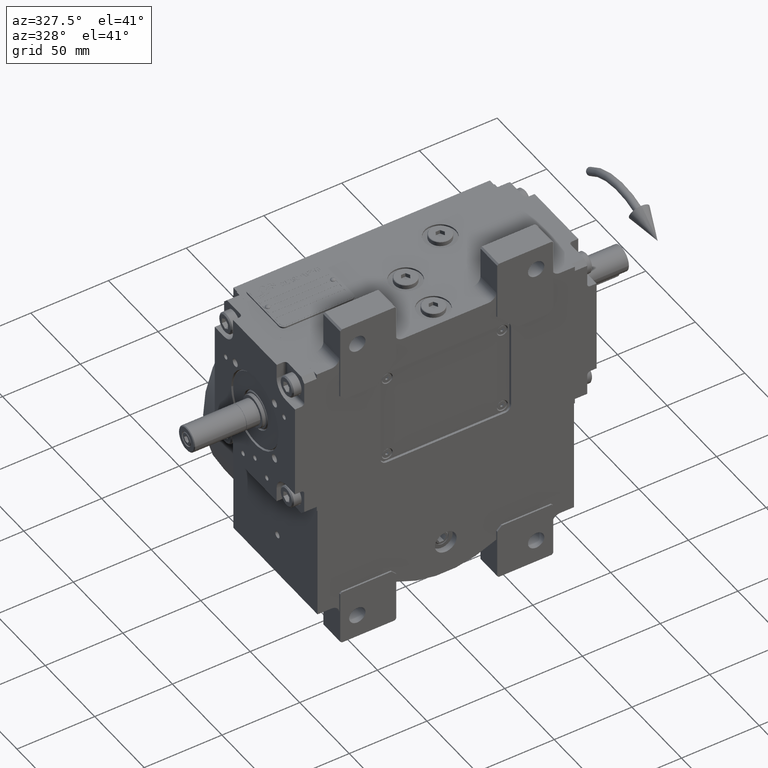
[diagram: clean part render]
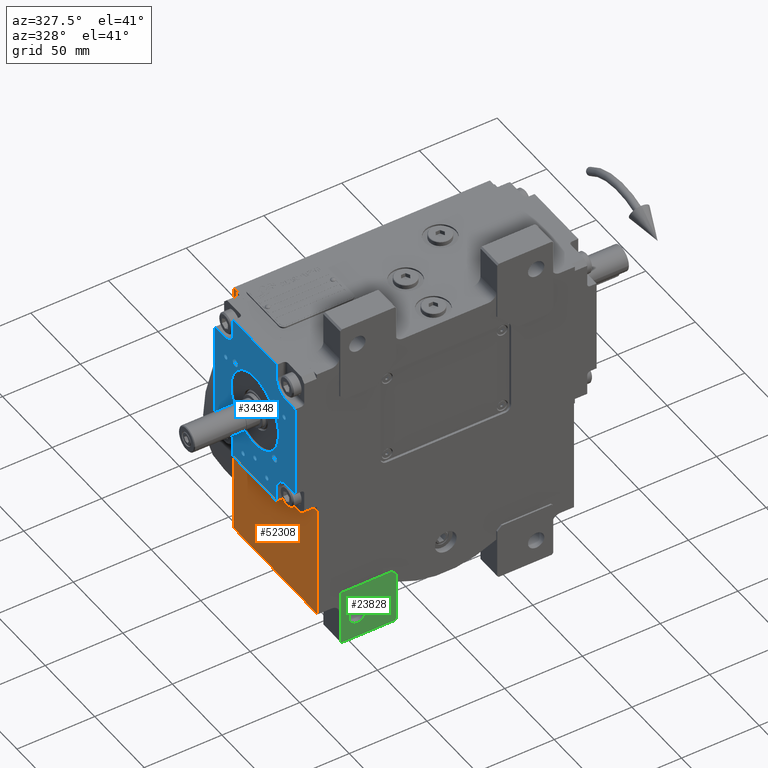
[diagram: same view with three faces highlighted in distinct colors, each labeled with its STEP entity id]
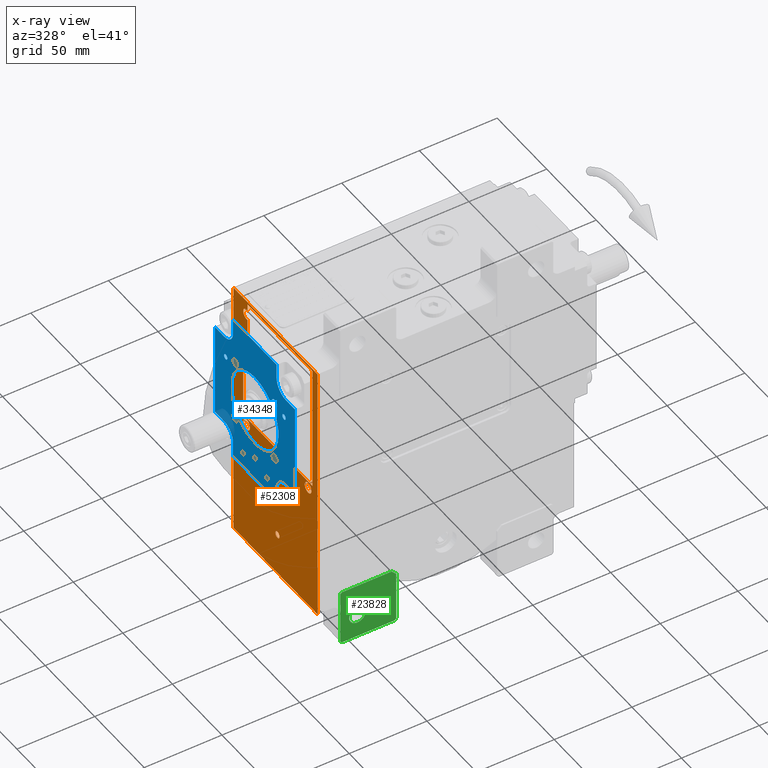
[diagram: x-ray of the same camera — body ghosted, the three highlighted faces saturated]
A machine part, auxiliary view with three faces highlighted in distinct colors.
The next image is the same camera in x-ray (body ghosted, the three faces saturated) — at least one of them is partly hidden behind the body in this view.
Their STEP definitions:

[orange] entity #52308 — the highlighted planar face has unit normal (-1, 0, 0).
#53 = CARTESIAN_POINT ( 'NONE',  ( -82.50000000000000000, 34.44123850628318451, 71.73586743115500042 ) ) ;
#348 = VECTOR ( 'NONE', #4165, 1000.000000000000000 ) ;
#448 = AXIS2_PLACEMENT_3D ( 'NONE', #5384, #24817, #29655 ) ;
#617 = PLANE ( 'NONE',  #58577 ) ;
#679 = CARTESIAN_POINT ( 'NONE',  ( -82.50000000000000000, 34.39999999999999858, 104.5000000000000000 ) ) ;
#1129 = VERTEX_POINT ( 'NONE', #3317 ) ;
#1157 = ORIENTED_EDGE ( 'NONE', *, *, #27618, .T. ) ;
#1270 = DIRECTION ( 'NONE',  ( 0.000000000000000000, -1.000000000000000000, -8.260587980841937794E-16 ) ) ;
#1309 = CARTESIAN_POINT ( 'NONE',  ( -82.50000000000000000, -31.00000000000000000, 25.50000000000000000 ) ) ;
#1566 = CARTESIAN_POINT ( 'NONE',  ( -82.49999999999994316, -35.50000000000001421, 112.4999999999999005 ) ) ;
#1795 = EDGE_CURVE ( 'NONE', #7905, #36019, #31574, .T. ) ;
#1803 = CIRCLE ( 'NONE', #10065, 2.100000000000000089 ) ;
#2028 = LINE ( 'NONE', #22397, #2751 ) ;
#2161 = EDGE_LOOP ( 'NONE', ( #23589, #30732 ) ) ;
#2176 = CARTESIAN_POINT ( 'NONE',  ( -82.50000025268040815, 16.91834885168089997, -58.49999999999780442 ) ) ;
#2193 = DIRECTION ( 'NONE',  ( 1.000000000000000000, 0.000000000000000000, 0.000000000000000000 ) ) ;
#2483 = DIRECTION ( 'NONE',  ( 1.000000000000000000, 0.000000000000000000, 0.000000000000000000 ) ) ;
#2574 = ORIENTED_EDGE ( 'NONE', *, *, #34715, .T. ) ;
#2751 = VECTOR ( 'NONE', #42450, 1000.000000000000000 ) ;
#3010 = VECTOR ( 'NONE', #9100, 1000.000000000000000 ) ;
#3061 = B_SPLINE_CURVE_WITH_KNOTS ( 'NONE', 3,
 ( #40054, #60402, #15148, #15792 ),
 .UNSPECIFIED., .F., .F.,
 ( 4, 4 ),
 ( 0.4999998433996634128, 0.5230117272599914546 ),
 .UNSPECIFIED. ) ;
#3317 = CARTESIAN_POINT ( 'NONE',  ( -82.50000000000001421, -2.287620885322700237E-09, 29.90816376197471627 ) ) ;
#3769 = VECTOR ( 'NONE', #7931, 1000.000000000000000 ) ;
#3986 = CARTESIAN_POINT ( 'NONE',  ( -82.50000000000000000, 2.220446049250315053E-16, -31.00000000000000000 ) ) ;
#4075 = AXIS2_PLACEMENT_3D ( 'NONE', #1309, #10056, #20737 ) ;
#4128 = VERTEX_POINT ( 'NONE', #45084 ) ;
#4165 = DIRECTION ( 'NONE',  ( 0.000000000000000000, -1.000000000000000000, 0.000000000000000000 ) ) ;
#5160 = DIRECTION ( 'NONE',  ( 0.000000000000000000, 0.000000000000000000, 1.000000000000000000 ) ) ;
#5210 = CARTESIAN_POINT ( 'NONE',  ( -82.49999999999997158, 30.82821280392017016, 81.84160544066514831 ) ) ;
#5384 = CARTESIAN_POINT ( 'NONE',  ( -82.50000000000000000, 31.00000000000000000, 25.50000000000000000 ) ) ;
#5465 = FACE_BOUND ( 'NONE', #34253, .T. ) ;
#5916 = VERTEX_POINT ( 'NONE', #16559 ) ;
#5990 = ORIENTED_EDGE ( 'NONE', *, *, #30021, .T. ) ;
#6131 = DIRECTION ( 'NONE',  ( 1.000000000000000000, 0.000000000000000000, 0.000000000000000000 ) ) ;
#6179 = CARTESIAN_POINT ( 'NONE',  ( -82.50000000000000000, 44.50000000000000000, 114.0000000000000000 ) ) ;
#6433 = DIRECTION ( 'NONE',  ( 0.000000000000000000, 0.000000000000000000, 1.000000000000000000 ) ) ;
#6738 = CIRCLE ( 'NONE', #12932, 3.400000000000000355 ) ;
#6752 = CARTESIAN_POINT ( 'NONE',  ( -82.50000000000000000, 44.50000000000000000, -58.50000000000000000 ) ) ;
#7067 = DIRECTION ( 'NONE',  ( 0.000000000000000000, -1.000000000000000000, 0.000000000000000000 ) ) ;
#7905 = VERTEX_POINT ( 'NONE', #57078 ) ;
#7931 = DIRECTION ( 'NONE',  ( 0.000000000000000000, 0.000000000000000000, 1.000000000000000000 ) ) ;
#8426 = ORIENTED_EDGE ( 'NONE', *, *, #9740, .T. ) ;
#9100 = DIRECTION ( 'NONE',  ( 0.000000000000000000, 0.000000000000000000, 1.000000000000000000 ) ) ;
#9248 = CIRCLE ( 'NONE', #4075, 3.400000000000000355 ) ;
#9740 = EDGE_CURVE ( 'NONE', #13156, #15721, #18219, .T. ) ;
#10056 = DIRECTION ( 'NONE',  ( 1.000000000000000000, 0.000000000000000000, 0.000000000000000000 ) ) ;
#10065 = AXIS2_PLACEMENT_3D ( 'NONE', #20044, #6131, #1270 ) ;
#10326 = FACE_BOUND ( 'NONE', #48522, .T. ) ;
#10818 = CARTESIAN_POINT ( 'NONE',  ( -82.50000000000000000, 31.00000000000000000, 25.50000000000000000 ) ) ;
#10938 = CARTESIAN_POINT ( 'NONE',  ( -82.50001592522831118, 35.09186693461254691, 64.99999953009839260 ) ) ;
#11572 = EDGE_CURVE ( 'NONE', #18985, #43445, #45281, .T. ) ;
#11893 = CARTESIAN_POINT ( 'NONE',  ( -82.50000000000000000, 2.100000000000000089, -3.000000000000000000 ) ) ;
#11919 = AXIS2_PLACEMENT_3D ( 'NONE', #3986, #53127, #63794 ) ;
#12266 = CARTESIAN_POINT ( 'NONE',  ( -82.50000000000001421, 34.49999998246811117, 58.58309560374851088 ) ) ;
#12438 = DIRECTION ( 'NONE',  ( 1.000000000000000000, 0.000000000000000000, 0.000000000000000000 ) ) ;
#12811 = AXIS2_PLACEMENT_3D ( 'NONE', #45094, #60281, #40564 ) ;
#12932 = AXIS2_PLACEMENT_3D ( 'NONE', #10818, #30550, #63886 ) ;
#13034 = DIRECTION ( 'NONE',  ( 0.000000000000000000, 4.048429820936533247E-12, 1.000000000000000000 ) ) ;
#13156 = VERTEX_POINT ( 'NONE', #56361 ) ;
#13369 = CARTESIAN_POINT ( 'NONE',  ( -82.50000000000000000, 29.99999999930757255, -58.50000000028541791 ) ) ;
#13421 = VERTEX_POINT ( 'NONE', #14947 ) ;
#13768 = ORIENTED_EDGE ( 'NONE', *, *, #23015, .T. ) ;
#14209 = ORIENTED_EDGE ( 'NONE', *, *, #54253, .T. ) ;
#14299 = CARTESIAN_POINT ( 'NONE',  ( -82.50000000000000000, 30.00000000867837002, 83.20545253224972271 ) ) ;
#14947 = CARTESIAN_POINT ( 'NONE',  ( -82.50000000000000000, 30.00000000867837002, 83.20545253224972271 ) ) ;
#15148 = CARTESIAN_POINT ( 'NONE',  ( -82.50000000000000000, 1.693755084738244543, 29.93853868035975907 ) ) ;
#15662 = EDGE_CURVE ( 'NONE', #27283, #21310, #49754, .T. ) ;
#15683 = VERTEX_POINT ( 'NONE', #45247 ) ;
#15721 = VERTEX_POINT ( 'NONE', #50413 ) ;
#15792 = CARTESIAN_POINT ( 'NONE',  ( -82.50000000000001421, 2.536110577986972814, 29.99973809510204248 ) ) ;
#15905 = ORIENTED_EDGE ( 'NONE', *, *, #1795, .F. ) ;
#16559 = CARTESIAN_POINT ( 'NONE',  ( -82.50000000000000000, 34.39999999999999858, 25.50000000000000000 ) ) ;
#17051 = CARTESIAN_POINT ( 'NONE',  ( -82.50000000000000000, 0.000000000000000000, -3.000000000000000000 ) ) ;
#17316 = ORIENTED_EDGE ( 'NONE', *, *, #41239, .T. ) ;
#17699 = CARTESIAN_POINT ( 'NONE',  ( -82.50000000000000000, 27.59999999999999787, 25.50000000000000000 ) ) ;
#17744 = AXIS2_PLACEMENT_3D ( 'NONE', #56732, #12438, #32155 ) ;
#18219 = LINE ( 'NONE', #13369, #37104 ) ;
#18332 = LINE ( 'NONE', #37402, #52400 ) ;
#18496 = CARTESIAN_POINT ( 'NONE',  ( -82.50000000000000000, 35.08908161224486122, 62.82758922874562302 ) ) ;
#18519 = CARTESIAN_POINT ( 'NONE',  ( -82.50000000000000000, 44.50000000000000000, -58.50000000000000000 ) ) ;
#18985 = VERTEX_POINT ( 'NONE', #12266 ) ;
#19191 = CARTESIAN_POINT ( 'NONE',  ( -82.50000000000000000, -1.693856051063748369, 29.93856828993435926 ) ) ;
#19303 = ORIENTED_EDGE ( 'NONE', *, *, #11572, .T. ) ;
#19477 = CARTESIAN_POINT ( 'NONE',  ( -82.49999999999998579, 32.80572396566295623, 77.48509901605747530 ) ) ;
#19574 = CARTESIAN_POINT ( 'NONE',  ( -82.50000000000000000, 29.99999999995430500, 101.2503846381596730 ) ) ;
#19790 = CARTESIAN_POINT ( 'NONE',  ( -82.50000000000001421, 34.19718383885854252, 72.91221821802147929 ) ) ;
#19935 = EDGE_CURVE ( 'NONE', #59349, #41605, #43072, .T. ) ;
#20025 = EDGE_CURVE ( 'NONE', #26986, #35658, #9248, .T. ) ;
#20044 = CARTESIAN_POINT ( 'NONE',  ( -82.50000000000000000, 0.000000000000000000, -3.000000000000000000 ) ) ;
#20101 = CARTESIAN_POINT ( 'NONE',  ( -82.49999999999998579, 34.64992140295584022, 70.56373136111959354 ) ) ;
#20131 = ORIENTED_EDGE ( 'NONE', *, *, #61236, .T. ) ;
#20737 = DIRECTION ( 'NONE',  ( 0.000000000000000000, 1.000000000000000000, -2.040851148208007998E-15 ) ) ;
#21310 = VERTEX_POINT ( 'NONE', #46020 ) ;
#21458 = EDGE_CURVE ( 'NONE', #59349, #36019, #28190, .T. ) ;
#21540 = EDGE_CURVE ( 'NONE', #4128, #43013, #30343, .T. ) ;
#22191 = DIRECTION ( 'NONE',  ( 0.000000000000000000, 1.000000000000000000, 0.000000000000000000 ) ) ;
#22397 = CARTESIAN_POINT ( 'NONE',  ( -82.50000000000000000, -40.50000000000000000, 114.0000000000000000 ) ) ;
#22545 = DIRECTION ( 'NONE',  ( 0.000000000000000000, 4.048429820936533247E-12, 1.000000000000000000 ) ) ;
#22752 = CARTESIAN_POINT ( 'NONE',  ( -82.49999999999994316, 34.49999999999999289, 30.00000000000000000 ) ) ;
#23015 = EDGE_CURVE ( 'NONE', #43445, #13421, #45727, .T. ) ;
#23263 = CARTESIAN_POINT ( 'NONE',  ( -82.50000000000000000, -40.50000000000000000, 112.4999999999999005 ) ) ;
#23509 = VERTEX_POINT ( 'NONE', #1566 ) ;
#23589 = ORIENTED_EDGE ( 'NONE', *, *, #48238, .T. ) ;
#24043 = AXIS2_PLACEMENT_3D ( 'NONE', #17051, #2483, #32555 ) ;
#24716 = CARTESIAN_POINT ( 'NONE',  ( -82.50000000000000000, -35.50000000000001421, -58.50000000000000000 ) ) ;
#24817 = DIRECTION ( 'NONE',  ( 1.000000000000000000, 0.000000000000000000, 0.000000000000000000 ) ) ;
#25130 = DIRECTION ( 'NONE',  ( 0.000000000000000000, -1.000000000000000000, 2.040851148208007998E-15 ) ) ;
#25344 = CIRCLE ( 'NONE', #11919, 2.100000000000000089 ) ;
#26188 = ORIENTED_EDGE ( 'NONE', *, *, #20025, .T. ) ;
#26346 = AXIS2_PLACEMENT_3D ( 'NONE', #29666, #59744, #25130 ) ;
#26429 = ORIENTED_EDGE ( 'NONE', *, *, #21540, .T. ) ;
#26509 = EDGE_LOOP ( 'NONE', ( #15905, #42212, #17316, #41265, #60389 ) ) ;
#26748 = CARTESIAN_POINT ( 'NONE',  ( -82.50000000000000000, -40.50000000000000000, -58.50000000000000000 ) ) ;
#26986 = VERTEX_POINT ( 'NONE', #32087 ) ;
#27283 = VERTEX_POINT ( 'NONE', #36237 ) ;
#27618 = EDGE_CURVE ( 'NONE', #15721, #23509, #53643, .T. ) ;
#28190 = LINE ( 'NONE', #46975, #62605 ) ;
#29140 = VERTEX_POINT ( 'NONE', #41358 ) ;
#29388 = EDGE_CURVE ( 'NONE', #35658, #26986, #43866, .T. ) ;
#29513 = CARTESIAN_POINT ( 'NONE',  ( -82.50000000000000000, -0.8484797862254708223, 29.90810260806298970 ) ) ;
#29655 = DIRECTION ( 'NONE',  ( 0.000000000000000000, -1.000000000000000000, 0.000000000000000000 ) ) ;
#29666 = CARTESIAN_POINT ( 'NONE',  ( -82.50000000000000000, -31.00000000000000000, 25.50000000000000000 ) ) ;
#30021 = EDGE_CURVE ( 'NONE', #44410, #36758, #33435, .T. ) ;
#30022 = ORIENTED_EDGE ( 'NONE', *, *, #29388, .T. ) ;
#30343 = LINE ( 'NONE', #40694, #36756 ) ;
#30367 = CARTESIAN_POINT ( 'NONE',  ( -82.50000000000000000, 34.49999999999999289, -58.50000000000000000 ) ) ;
#30550 = DIRECTION ( 'NONE',  ( 1.000000000000000000, 0.000000000000000000, 0.000000000000000000 ) ) ;
#30692 = FACE_OUTER_BOUND ( 'NONE', #26509, .T. ) ;
#30732 = ORIENTED_EDGE ( 'NONE', *, *, #37521, .T. ) ;
#31497 = VERTEX_POINT ( 'NONE', #52511 ) ;
#31521 = EDGE_CURVE ( 'NONE', #21310, #27283, #25344, .T. ) ;
#31526 = VECTOR ( 'NONE', #53097, 1000.000000000000000 ) ;
#31574 = LINE ( 'NONE', #26748, #39027 ) ;
#31931 = VECTOR ( 'NONE', #34719, 1000.000000000000000 ) ;
#32087 = CARTESIAN_POINT ( 'NONE',  ( -82.50000000000000000, -27.59999999999999787, 25.50000000000000000 ) ) ;
#32155 = DIRECTION ( 'NONE',  ( 0.000000000000000000, 1.000000000000000000, 8.163404592832031993E-15 ) ) ;
#32498 = CARTESIAN_POINT ( 'NONE',  ( -82.50000000000000000, -40.50000000000000000, -58.50000000000000000 ) ) ;
#32555 = DIRECTION ( 'NONE',  ( 0.000000000000000000, 1.000000000000000000, 8.260587980841937794E-16 ) ) ;
#33030 = CARTESIAN_POINT ( 'NONE',  ( -82.50000000000001421, 34.49999998246811117, 58.58309560374851088 ) ) ;
#33386 = LINE ( 'NONE', #22752, #31526 ) ;
#33435 = CIRCLE ( 'NONE', #12811, 3.400000000000000355 ) ;
#33863 = ORIENTED_EDGE ( 'NONE', *, *, #56748, .T. ) ;
#34028 = CARTESIAN_POINT ( 'NONE',  ( -82.49999999999998579, 34.51516652717843670, 71.34637031958465059 ) ) ;
#34072 = CARTESIAN_POINT ( 'NONE',  ( -82.50000000000001421, -2.287620885322700237E-09, 29.90816376197471627 ) ) ;
#34253 = EDGE_LOOP ( 'NONE', ( #13768, #20131, #5990, #2574, #8426, #1157, #62010, #26429, #14209, #33863, #41421, #63779, #19303 ) ) ;
#34641 = CARTESIAN_POINT ( 'NONE',  ( -82.50000000000000000, 33.33875079064434033, 75.98289247495044663 ) ) ;
#34715 = EDGE_CURVE ( 'NONE', #36758, #13156, #49728, .T. ) ;
#34719 = DIRECTION ( 'NONE',  ( 0.000000000000000000, 0.000000000000000000, -1.000000000000000000 ) ) ;
#35658 = VERTEX_POINT ( 'NONE', #52025 ) ;
#35870 = FACE_BOUND ( 'NONE', #41540, .T. ) ;
#35954 = ORIENTED_EDGE ( 'NONE', *, *, #15662, .T. ) ;
#36019 = VERTEX_POINT ( 'NONE', #2176 ) ;
#36107 = EDGE_CURVE ( 'NONE', #50517, #15683, #41637, .T. ) ;
#36179 = CARTESIAN_POINT ( 'NONE',  ( -82.50000000000000000, 0.000000000000000000, -31.00000000000000000 ) ) ;
#36237 = CARTESIAN_POINT ( 'NONE',  ( -82.50000000000000000, -2.100000000000000089, -31.00000000000000000 ) ) ;
#36589 = CIRCLE ( 'NONE', #448, 3.400000000000000355 ) ;
#36756 = VECTOR ( 'NONE', #48877, 1000.000000000000000 ) ;
#36758 = VERTEX_POINT ( 'NONE', #679 ) ;
#37104 = VECTOR ( 'NONE', #13034, 1000.000000000000000 ) ;
#37274 = CARTESIAN_POINT ( 'NONE',  ( -82.49999999999994316, 34.49999999999999289, 30.00000000000000000 ) ) ;
#37402 = CARTESIAN_POINT ( 'NONE',  ( -82.50000000000000000, 29.99999999930757255, -58.50000000028541791 ) ) ;
#37521 = EDGE_CURVE ( 'NONE', #49242, #5916, #36589, .T. ) ;
#38195 = CARTESIAN_POINT ( 'NONE',  ( -82.50001592522831118, 35.09186693461254691, 64.99999953009839260 ) ) ;
#38450 = EDGE_CURVE ( 'NONE', #31497, #50302, #33386, .T. ) ;
#38524 = EDGE_CURVE ( 'NONE', #50302, #18985, #54623, .T. ) ;
#39027 = VECTOR ( 'NONE', #22191, 1000.000000000000000 ) ;
#39488 = CARTESIAN_POINT ( 'NONE',  ( -82.50000000000001421, 33.81987246518856693, 74.46412064016473664 ) ) ;
#39803 = CARTESIAN_POINT ( 'NONE',  ( -82.49999999999998579, 32.51271328324587984, 78.22921750587390477 ) ) ;
#40054 = CARTESIAN_POINT ( 'NONE',  ( -82.50000000000001421, -2.287620885322700237E-09, 29.90816376197471627 ) ) ;
#40564 = DIRECTION ( 'NONE',  ( 0.000000000000000000, -1.000000000000000000, 0.000000000000000000 ) ) ;
#40694 = CARTESIAN_POINT ( 'NONE',  ( -82.50000000000000000, -40.50000000000000711, 29.99999999999997868 ) ) ;
#41046 = FACE_BOUND ( 'NONE', #2161, .T. ) ;
#41239 = EDGE_CURVE ( 'NONE', #29140, #41605, #2028, .T. ) ;
#41265 = ORIENTED_EDGE ( 'NONE', *, *, #19935, .F. ) ;
#41358 = CARTESIAN_POINT ( 'NONE',  ( -82.50000000000000000, -40.50000000000000000, 114.0000000000000000 ) ) ;
#41421 = ORIENTED_EDGE ( 'NONE', *, *, #38450, .T. ) ;
#41540 = EDGE_LOOP ( 'NONE', ( #48400, #35954 ) ) ;
#41605 = VERTEX_POINT ( 'NONE', #6179 ) ;
#41637 = CIRCLE ( 'NONE', #24043, 2.100000000000000089 ) ;
#42212 = ORIENTED_EDGE ( 'NONE', *, *, #51232, .T. ) ;
#42450 = DIRECTION ( 'NONE',  ( 0.000000000000000000, 1.000000000000000000, 0.000000000000000000 ) ) ;
#43013 = VERTEX_POINT ( 'NONE', #45068 ) ;
#43072 = LINE ( 'NONE', #18519, #3010 ) ;
#43181 = LINE ( 'NONE', #32498, #3769 ) ;
#43445 = VERTEX_POINT ( 'NONE', #10938 ) ;
#43564 = AXIS2_PLACEMENT_3D ( 'NONE', #36179, #2193, #7067 ) ;
#43866 = CIRCLE ( 'NONE', #26346, 3.400000000000000355 ) ;
#44113 = ORIENTED_EDGE ( 'NONE', *, *, #36107, .T. ) ;
#44363 = CARTESIAN_POINT ( 'NONE',  ( -82.50000000000002842, 35.08975819422995102, 66.61074919792433491 ) ) ;
#44410 = VERTEX_POINT ( 'NONE', #19574 ) ;
#44615 = DIRECTION ( 'NONE',  ( -1.000000000000000000, 0.000000000000000000, 0.000000000000000000 ) ) ;
#45068 = CARTESIAN_POINT ( 'NONE',  ( -82.50000000000001421, -2.536110195798589206, 29.99974328700381321 ) ) ;
#45084 = CARTESIAN_POINT ( 'NONE',  ( -82.49999999999994316, -35.50000000000001421, 29.99999999999999289 ) ) ;
#45094 = CARTESIAN_POINT ( 'NONE',  ( -82.50000000000000000, 31.00000000000000000, 104.5000000000000000 ) ) ;
#45131 = B_SPLINE_CURVE_WITH_KNOTS ( 'NONE', 3,
 ( #63153, #19191, #29513, #34072 ),
 .UNSPECIFIED., .F., .F.,
 ( 4, 4 ),
 ( 0.4769927843648675836, 0.4999998433996634128 ),
 .UNSPECIFIED. ) ;
#45247 = CARTESIAN_POINT ( 'NONE',  ( -82.50000000000000000, -2.100000000000000089, -3.000000000000000000 ) ) ;
#45281 = B_SPLINE_CURVE_WITH_KNOTS ( 'NONE', 3,
 ( #33030, #47888, #18496, #38195 ),
 .UNSPECIFIED., .F., .F.,
 ( 4, 4 ),
 ( 0.9414611157487362547, 1.000000000000000000 ),
 .UNSPECIFIED. ) ;
#45727 = B_SPLINE_CURVE_WITH_KNOTS ( 'NONE', 3,
 ( #58907, #44363, #49528, #20101, #34028, #53, #19790, #39488, #34641, #19477, #39803, #63415, #5210, #14299 ),
 .UNSPECIFIED., .F., .F.,
 ( 4, 1, 2, 2, 1, 2, 2, 4 ),
 ( 0.000000000000000000, 0.04341200056680650371, 0.05426500070850821117, 0.06511800085020991169, 0.08682400113361293803, 0.1085300014170159644, 0.1302360017004190185, 0.1736480022672247103 ),
 .UNSPECIFIED. ) ;
#46020 = CARTESIAN_POINT ( 'NONE',  ( -82.50000000000000000, 2.100000000000000089, -31.00000000000000000 ) ) ;
#46975 = CARTESIAN_POINT ( 'NONE',  ( -82.50000000000000000, 44.50000000000000000, -58.50000000000000000 ) ) ;
#47888 = CARTESIAN_POINT ( 'NONE',  ( -82.50000000000000000, 34.89175422473395116, 60.68862570168793980 ) ) ;
#47917 = DIRECTION ( 'NONE',  ( 0.000000000000000000, -1.000000000000000000, 3.148047468836620162E-13 ) ) ;
#48238 = EDGE_CURVE ( 'NONE', #5916, #49242, #6738, .T. ) ;
#48400 = ORIENTED_EDGE ( 'NONE', *, *, #31521, .T. ) ;
#48522 = EDGE_LOOP ( 'NONE', ( #26188, #30022 ) ) ;
#48877 = DIRECTION ( 'NONE',  ( 0.000000000000000000, 1.000000000000000000, 9.912705577010326782E-17 ) ) ;
#48957 = LINE ( 'NONE', #24716, #31931 ) ;
#49242 = VERTEX_POINT ( 'NONE', #17699 ) ;
#49528 = CARTESIAN_POINT ( 'NONE',  ( -82.50000000000002842, 34.95338893702608374, 68.60145005483263958 ) ) ;
#49728 = CIRCLE ( 'NONE', #17744, 3.400000000000000355 ) ;
#49754 = CIRCLE ( 'NONE', #43564, 2.100000000000000089 ) ;
#50133 = EDGE_LOOP ( 'NONE', ( #44113, #53255 ) ) ;
#50302 = VERTEX_POINT ( 'NONE', #37274 ) ;
#50413 = CARTESIAN_POINT ( 'NONE',  ( -82.49999999999994316, 29.99999999999985079, 112.4999999999999005 ) ) ;
#50517 = VERTEX_POINT ( 'NONE', #11893 ) ;
#50740 = CARTESIAN_POINT ( 'NONE',  ( -82.50000000000000000, -40.50000000000000000, -58.50000000000000000 ) ) ;
#51232 = EDGE_CURVE ( 'NONE', #7905, #29140, #43181, .T. ) ;
#52025 = CARTESIAN_POINT ( 'NONE',  ( -82.50000000000000000, -34.39999999999999858, 25.50000000000000000 ) ) ;
#52279 = EDGE_CURVE ( 'NONE', #15683, #50517, #1803, .T. ) ;
#52308 = ADVANCED_FACE ( 'NONE', ( #35870, #54619, #10326, #41046, #5465, #30692 ), #617, .T. ) ;
#52400 = VECTOR ( 'NONE', #22545, 1000.000000000000000 ) ;
#52511 = CARTESIAN_POINT ( 'NONE',  ( -82.50000000000001421, 2.536110577986972814, 29.99973809510204248 ) ) ;
#53097 = DIRECTION ( 'NONE',  ( -0.000000000000000000, 1.000000000000000000, 9.912705577010326782E-17 ) ) ;
#53127 = DIRECTION ( 'NONE',  ( 1.000000000000000000, 0.000000000000000000, 0.000000000000000000 ) ) ;
#53255 = ORIENTED_EDGE ( 'NONE', *, *, #52279, .T. ) ;
#53643 = LINE ( 'NONE', #23263, #348 ) ;
#54218 = VECTOR ( 'NONE', #5160, 1000.000000000000000 ) ;
#54253 = EDGE_CURVE ( 'NONE', #43013, #1129, #45131, .T. ) ;
#54619 = FACE_BOUND ( 'NONE', #50133, .T. ) ;
#54623 = LINE ( 'NONE', #30367, #54218 ) ;
#56361 = CARTESIAN_POINT ( 'NONE',  ( -82.50000000000000000, 29.99999999998061995, 107.7496153618484129 ) ) ;
#56732 = CARTESIAN_POINT ( 'NONE',  ( -82.50000000000000000, 31.00000000000000000, 104.5000000000000000 ) ) ;
#56748 = EDGE_CURVE ( 'NONE', #1129, #31497, #3061, .T. ) ;
#57078 = CARTESIAN_POINT ( 'NONE',  ( -82.50000000000000000, -40.50000000000000000, -58.50000000000000000 ) ) ;
#58577 = AXIS2_PLACEMENT_3D ( 'NONE', #50740, #44615, #6433 ) ;
#58907 = CARTESIAN_POINT ( 'NONE',  ( -82.50001592522831118, 35.09186693461254691, 64.99999953009839260 ) ) ;
#59349 = VERTEX_POINT ( 'NONE', #6752 ) ;
#59744 = DIRECTION ( 'NONE',  ( 1.000000000000000000, 0.000000000000000000, 0.000000000000000000 ) ) ;
#60281 = DIRECTION ( 'NONE',  ( 1.000000000000000000, 0.000000000000000000, 0.000000000000000000 ) ) ;
#60389 = ORIENTED_EDGE ( 'NONE', *, *, #21458, .T. ) ;
#60402 = CARTESIAN_POINT ( 'NONE',  ( -82.50000000000000000, 0.8486577169056170877, 29.90807645586816577 ) ) ;
#61236 = EDGE_CURVE ( 'NONE', #13421, #44410, #18332, .T. ) ;
#62010 = ORIENTED_EDGE ( 'NONE', *, *, #62417, .T. ) ;
#62417 = EDGE_CURVE ( 'NONE', #23509, #4128, #48957, .T. ) ;
#62605 = VECTOR ( 'NONE', #47917, 1000.000000000000000 ) ;
#63153 = CARTESIAN_POINT ( 'NONE',  ( -82.50000000000001421, -2.536110195798589206, 29.99974328700381321 ) ) ;
#63415 = CARTESIAN_POINT ( 'NONE',  ( -82.50000000000000000, 31.55988692790298700, 80.42704711029396947 ) ) ;
#63779 = ORIENTED_EDGE ( 'NONE', *, *, #38524, .T. ) ;
#63794 = DIRECTION ( 'NONE',  ( 0.000000000000000000, 1.000000000000000000, 0.000000000000000000 ) ) ;
#63886 = DIRECTION ( 'NONE',  ( 0.000000000000000000, 1.000000000000000000, 0.000000000000000000 ) ) ;

[blue] entity #34348 — the highlighted planar face has unit normal (1, 0, -0).
#62 = DIRECTION ( 'NONE',  ( 3.164135620181695509E-14, 4.218847493575605898E-15, 1.000000000000000000 ) ) ;
#446 = DIRECTION ( 'NONE',  ( -1.000000000000000000, 0.000000000000000000, -1.892425610156518551E-14 ) ) ;
#469 = DIRECTION ( 'NONE',  ( -5.503425921419128482E-29, -1.000000000000000000, -4.218847493575605898E-15 ) ) ;
#485 = EDGE_CURVE ( 'NONE', #28140, #5429, #30599, .T. ) ;
#530 = EDGE_CURVE ( 'NONE', #53299, #27368, #56777, .T. ) ;
#713 = DIRECTION ( 'NONE',  ( -5.503425921419128482E-29, -1.000000000000000000, -4.218847493575605898E-15 ) ) ;
#907 = AXIS2_PLACEMENT_3D ( 'NONE', #58983, #44754, #446 ) ;
#1035 = LINE ( 'NONE', #27511, #33909 ) ;
#1262 = EDGE_CURVE ( 'NONE', #35810, #19897, #58014, .T. ) ;
#1505 = DIRECTION ( 'NONE',  ( -1.000000000000000000, 0.000000000000000000, -3.191891195797326947E-14 ) ) ;
#1522 = EDGE_CURVE ( 'NONE', #18098, #24191, #8979, .T. ) ;
#1581 = CARTESIAN_POINT ( 'NONE',  ( -22.64668203140376690, -14.00000000000002842, 7.685839165587858623 ) ) ;
#1843 = CARTESIAN_POINT ( 'NONE',  ( -22.29898987322400927, -13.99999999999999822, -19.79898987322440007 ) ) ;
#1910 = CARTESIAN_POINT ( 'NONE',  ( 10.57957080955140761, -14.00000000000008704, 21.44796303468499232 ) ) ;
#1927 = VERTEX_POINT ( 'NONE', #13127 ) ;
#2132 = CARTESIAN_POINT ( 'NONE',  ( -21.99999999999841549, -13.99999999999947065, 48.99999999999947420 ) ) ;
#2213 = CARTESIAN_POINT ( 'NONE',  ( -21.44818571229940218, -14.00000000000004441, 10.57917287093044045 ) ) ;
#2242 = VERTEX_POINT ( 'NONE', #36047 ) ;
#2384 = DIRECTION ( 'NONE',  ( -1.000000000000000000, -5.501979271014792412E-29, -3.164135620181695509E-14 ) ) ;
#2669 = CARTESIAN_POINT ( 'NONE',  ( 14.56088552662167324, -13.99999999999991829, -18.97166031808826148 ) ) ;
#2677 = CIRCLE ( 'NONE', #49178, 1.649999999999999911 ) ;
#3074 = LINE ( 'NONE', #18265, #3140 ) ;
#3105 = DIRECTION ( 'NONE',  ( 5.503425921419128482E-29, 1.000000000000000000, 4.218847493575605898E-15 ) ) ;
#3126 = EDGE_LOOP ( 'NONE', ( #28979, #44121 ) ) ;
#3135 = ORIENTED_EDGE ( 'NONE', *, *, #39454, .F. ) ;
#3140 = VECTOR ( 'NONE', #63485, 1000.000000000000000 ) ;
#3204 = FACE_OUTER_BOUND ( 'NONE', #52060, .T. ) ;
#3316 = CARTESIAN_POINT ( 'NONE',  ( 40.49999999999921130, -14.00000000000001243, -30.49999999999893063 ) ) ;
#3432 = CIRCLE ( 'NONE', #50941, 1.649999999999998579 ) ;
#3572 = EDGE_CURVE ( 'NONE', #37746, #49124, #55393, .T. ) ;
#3852 = CARTESIAN_POINT ( 'NONE',  ( 29.44486372867037360, -13.99999999999999822, -16.99999999999894484 ) ) ;
#4213 = DIRECTION ( 'NONE',  ( 1.000000000000000000, 5.501979271014792412E-29, 3.164135620181695509E-14 ) ) ;
#4911 = DIRECTION ( 'NONE',  ( -5.503425921419128482E-29, -1.000000000000000000, -4.218847493575605898E-15 ) ) ;
#5090 = LINE ( 'NONE', #44547, #55262 ) ;
#5165 = CARTESIAN_POINT ( 'NONE',  ( -29.44486372867142521, -13.99999999999999822, -17.00000000000104095 ) ) ;
#5429 = VERTEX_POINT ( 'NONE', #33100 ) ;
#5643 = CARTESIAN_POINT ( 'NONE',  ( -1.566773563360464472, -13.99999999999990052, -23.86400276692702249 ) ) ;
#5945 = DIRECTION ( 'NONE',  ( 1.000000000000000000, 0.000000000000000000, 3.364312195833806761E-14 ) ) ;
#5970 = ORIENTED_EDGE ( 'NONE', *, *, #53787, .T. ) ;
#5983 = CARTESIAN_POINT ( 'NONE',  ( -22.74139576683486297, -13.99999999999996803, -7.307389396848252616 ) ) ;
#6134 = CARTESIAN_POINT ( 'NONE',  ( -10.57953588485660212, -14.00000000000008882, 21.44790465845243332 ) ) ;
#6240 = CARTESIAN_POINT ( 'NONE',  ( 23.86397420030310101, -13.99999855607482502, 1.113406727926147255E-07 ) ) ;
#6435 = CARTESIAN_POINT ( 'NONE',  ( 23.24092213513677052, -14.00000000000002487, 5.420264589931599097 ) ) ;
#6666 = DIRECTION ( 'NONE',  ( -5.503425921419128482E-29, -1.000000000000000000, -4.218847493575605898E-15 ) ) ;
#6744 = CARTESIAN_POINT ( 'NONE',  ( 23.70962956883353456, -14.00000000000001066, 3.125609056103649586 ) ) ;
#6762 = EDGE_CURVE ( 'NONE', #12434, #61037, #30735, .T. ) ;
#6869 = CARTESIAN_POINT ( 'NONE',  ( 31.00000000000105516, -13.99999999999999822, 30.50000000000105516 ) ) ;
#7066 = ORIENTED_EDGE ( 'NONE', *, *, #57422, .F. ) ;
#7268 = ORIENTED_EDGE ( 'NONE', *, *, #14437, .T. ) ;
#8373 = ORIENTED_EDGE ( 'NONE', *, *, #19635, .F. ) ;
#8446 = VECTOR ( 'NONE', #42952, 1000.000000000000000 ) ;
#8912 = DIRECTION ( 'NONE',  ( 1.000000000000000000, 0.000000000000000000, 3.161051667335514589E-14 ) ) ;
#8979 = LINE ( 'NONE', #18069, #8446 ) ;
#9075 = VERTEX_POINT ( 'NONE', #25788 ) ;
#9079 = CARTESIAN_POINT ( 'NONE',  ( -40.49999999999894840, -13.99999999999999822, 30.49999999999868194 ) ) ;
#9109 = ORIENTED_EDGE ( 'NONE', *, *, #51143, .F. ) ;
#9310 = VERTEX_POINT ( 'NONE', #23781 ) ;
#10025 = CARTESIAN_POINT ( 'NONE',  ( -13.64999999999874802, -13.99999999999998401, 39.49999999999947420 ) ) ;
#10197 = CARTESIAN_POINT ( 'NONE',  ( -14.56055017842635557, -13.99999999999991473, -18.97195719011450521 ) ) ;
#10515 = AXIS2_PLACEMENT_3D ( 'NONE', #19493, #4911, #34045 ) ;
#10648 = ORIENTED_EDGE ( 'NONE', *, *, #24241, .T. ) ;
#10757 = EDGE_CURVE ( 'NONE', #53683, #9075, #44583, .T. ) ;
#10954 = CARTESIAN_POINT ( 'NONE',  ( 7.685169508964821539, -14.00000000000009770, 22.64680274495818324 ) ) ;
#11156 = CARTESIAN_POINT ( 'NONE',  ( 12.00000000000125233, -13.99999999999998401, 39.50000000000051870 ) ) ;
#11208 = VERTEX_POINT ( 'NONE', #55020 ) ;
#11298 = CARTESIAN_POINT ( 'NONE',  ( -11.95544121681374250, -14.00000000000008704, 20.71254616477394350 ) ) ;
#11394 = CIRCLE ( 'NONE', #47551, 2.499999999999998668 ) ;
#11486 = EDGE_LOOP ( 'NONE', ( #59784, #32915 ) ) ;
#12054 = CARTESIAN_POINT ( 'NONE',  ( 7.685219915720649553, -13.99999999999990585, -22.64685220041129554 ) ) ;
#12154 = VERTEX_POINT ( 'NONE', #17566 ) ;
#12255 = CARTESIAN_POINT ( 'NONE',  ( 11.95575968379381138, -14.00000000000008882, 20.71225054030665902 ) ) ;
#12434 = VERTEX_POINT ( 'NONE', #55175 ) ;
#12541 = CARTESIAN_POINT ( 'NONE',  ( -30.99999999999894484, -13.99999999999999822, 30.49999999999894484 ) ) ;
#12553 = LINE ( 'NONE', #38317, #40093 ) ;
#13016 = CARTESIAN_POINT ( 'NONE',  ( 20.71231213005231808, -13.99999999999995026, -11.95552765314612920 ) ) ;
#13127 = CARTESIAN_POINT ( 'NONE',  ( -31.00000000000092371, -14.00000000000001243, -30.50000000000105516 ) ) ;
#13294 = DIRECTION ( 'NONE',  ( 3.122502256758252139E-14, 4.240435163498860822E-15, 1.000000000000000000 ) ) ;
#13367 = DIRECTION ( 'NONE',  ( -1.000000000000000000, 0.000000000000000000, -3.191891195797326947E-14 ) ) ;
#13488 = CARTESIAN_POINT ( 'NONE',  ( 1.075806110861778909E-12, -13.99999999999999822, 34.00000000000000000 ) ) ;
#13585 = VERTEX_POINT ( 'NONE', #58644 ) ;
#13872 = CARTESIAN_POINT ( 'NONE',  ( 21.99999999999854694, -14.00000000000052580, -48.99999999999947420 ) ) ;
#13971 = CARTESIAN_POINT ( 'NONE',  ( 21.99999999999854694, -14.00000000000052580, -48.99999999999947420 ) ) ;
#14418 = CARTESIAN_POINT ( 'NONE',  ( -15.76640134121094050, -13.99999999999991829, -17.98226844684481662 ) ) ;
#14437 = EDGE_CURVE ( 'NONE', #48088, #57775, #26981, .T. ) ;
#14439 = ORIENTED_EDGE ( 'NONE', *, *, #16619, .F. ) ;
#14452 = EDGE_CURVE ( 'NONE', #12154, #54598, #15174, .T. ) ;
#14729 = CARTESIAN_POINT ( 'NONE',  ( -30.99999999999881339, -13.99999999999998401, 39.49999999999894840 ) ) ;
#14976 = EDGE_CURVE ( 'NONE', #36504, #21766, #58219, .T. ) ;
#15038 = CARTESIAN_POINT ( 'NONE',  ( -10.57957418679682782, -13.99999999999990763, -21.44796135337859511 ) ) ;
#15174 = CIRCLE ( 'NONE', #56421, 1.649999999999999911 ) ;
#15381 = CARTESIAN_POINT ( 'NONE',  ( -23.70962961231632349, -13.99999999999998401, -3.125608614640653204 ) ) ;
#15788 = CIRCLE ( 'NONE', #51897, 1.650000000000000355 ) ;
#16145 = CARTESIAN_POINT ( 'NONE',  ( 21.44833792708043774, -14.00000000000004441, 10.57861081113262358 ) ) ;
#16367 = EDGE_CURVE ( 'NONE', #47286, #13585, #42666, .T. ) ;
#16376 = AXIS2_PLACEMENT_3D ( 'NONE', #45358, #30448, #54389 ) ;
#16404 = EDGE_LOOP ( 'NONE', ( #48497, #9109 ) ) ;
#16514 = VERTEX_POINT ( 'NONE', #20831 ) ;
#16619 = EDGE_CURVE ( 'NONE', #13585, #47286, #15788, .T. ) ;
#16786 = CARTESIAN_POINT ( 'NONE',  ( -23.54577778822958223, -14.00000000000001776, 3.887974903385271741 ) ) ;
#16922 = CARTESIAN_POINT ( 'NONE',  ( 3.119326620315109100, -13.99999999999989697, -23.71108290340074731 ) ) ;
#17092 = CARTESIAN_POINT ( 'NONE',  ( 23.86397420030310101, -13.99999855607482502, 1.113406727926147255E-07 ) ) ;
#17122 = FACE_BOUND ( 'NONE', #23788, .T. ) ;
#17566 = CARTESIAN_POINT ( 'NONE',  ( -1.649999999998920552, -13.99999999999999822, 34.00000000000000000 ) ) ;
#17571 = CARTESIAN_POINT ( 'NONE',  ( 21.44818503823666944, -13.99999999999995381, -10.57917427091260798 ) ) ;
#17797 = ORIENTED_EDGE ( 'NONE', *, *, #16367, .F. ) ;
#17824 = CARTESIAN_POINT ( 'NONE',  ( -21.99999999999841549, -13.99999999999947065, 48.99999999999947420 ) ) ;
#18069 = CARTESIAN_POINT ( 'NONE',  ( 40.49999999999921130, -14.00000000000001243, -30.49999999999893063 ) ) ;
#18098 = VERTEX_POINT ( 'NONE', #3316 ) ;
#18194 = AXIS2_PLACEMENT_3D ( 'NONE', #27022, #18615, #22170 ) ;
#18201 = CARTESIAN_POINT ( 'NONE',  ( 23.80536272683589516, -13.99999999999998757, -1.958930260381811728 ) ) ;
#18265 = CARTESIAN_POINT ( 'NONE',  ( -40.50000000000079581, -14.00000000000001243, -30.50000000000106937 ) ) ;
#18454 = AXIS2_PLACEMENT_3D ( 'NONE', #5165, #24901, #30701 ) ;
#18478 = EDGE_CURVE ( 'NONE', #53299, #35333, #1035, .T. ) ;
#18615 = DIRECTION ( 'NONE',  ( -5.503425921419128482E-29, -1.000000000000000000, -4.218847493575605898E-15 ) ) ;
#18827 = EDGE_CURVE ( 'NONE', #52576, #56898, #23606, .T. ) ;
#19493 = CARTESIAN_POINT ( 'NONE',  ( 19.79898987322268766, -13.99999999999999822, -19.79898987322277648 ) ) ;
#19635 = EDGE_CURVE ( 'NONE', #37370, #16514, #24673, .T. ) ;
#19886 = CARTESIAN_POINT ( 'NONE',  ( -27.79486372867142308, -13.99999999999999822, -17.00000000000104095 ) ) ;
#19897 = VERTEX_POINT ( 'NONE', #52442 ) ;
#19907 = CARTESIAN_POINT ( 'NONE',  ( -23.10547566701052347, -13.99999999999997513, -5.990996842902175601 ) ) ;
#19915 = DIRECTION ( 'NONE',  ( 5.503425921419128482E-29, 1.000000000000000000, 4.218847493575605898E-15 ) ) ;
#20072 = CARTESIAN_POINT ( 'NONE',  ( -40.50000000000079581, -14.00000000000001243, -30.50000000000106937 ) ) ;
#20219 = CARTESIAN_POINT ( 'NONE',  ( -17.98245375129773649, -13.99999999999993783, -15.76636968212423007 ) ) ;
#20831 = CARTESIAN_POINT ( 'NONE',  ( 17.29898987322400927, -13.99999999999999822, 19.79898987322387072 ) ) ;
#21002 = CARTESIAN_POINT ( 'NONE',  ( -7.685223904494235647, -14.00000000000009770, 22.64685083059218940 ) ) ;
#21038 = ORIENTED_EDGE ( 'NONE', *, *, #14452, .F. ) ;
#21324 = CARTESIAN_POINT ( 'NONE',  ( 23.10547545258854285, -14.00000000000002309, 5.990997677066305371 ) ) ;
#21659 = CARTESIAN_POINT ( 'NONE',  ( 15.76639915680298110, -14.00000000000007638, 17.98227038497831032 ) ) ;
#21766 = VERTEX_POINT ( 'NONE', #12541 ) ;
#21823 = DIRECTION ( 'NONE',  ( 1.000000000000000000, 0.000000000000000000, 3.364312195833806761E-14 ) ) ;
#21865 = EDGE_CURVE ( 'NONE', #54598, #12154, #2677, .T. ) ;
#21958 = CARTESIAN_POINT ( 'NONE',  ( 3.118947749979880335, -14.00000000000009948, 23.71108948655761139 ) ) ;
#22087 = CARTESIAN_POINT ( 'NONE',  ( 1.650000000001079492, -13.99999999999999822, 34.00000000000000000 ) ) ;
#22170 = DIRECTION ( 'NONE',  ( 1.000000000000000000, 0.000000000000000000, 3.191891195797326947E-14 ) ) ;
#22391 = CIRCLE ( 'NONE', #58520, 2.499999999999998668 ) ;
#22418 = CARTESIAN_POINT ( 'NONE',  ( 1.566774008614296498, -13.99999999999990052, -23.86393752002924984 ) ) ;
#22642 = ORIENTED_EDGE ( 'NONE', *, *, #10757, .T. ) ;
#22817 = DIRECTION ( 'NONE',  ( -1.000000000000000000, 0.000000000000000000, -3.364312195833806761E-14 ) ) ;
#22902 = CARTESIAN_POINT ( 'NONE',  ( 22.29898987322400927, -13.99999999999999822, 19.79898987322387782 ) ) ;
#23269 = ORIENTED_EDGE ( 'NONE', *, *, #18827, .F. ) ;
#23358 = LINE ( 'NONE', #23689, #26511 ) ;
#23606 = CIRCLE ( 'NONE', #18454, 1.649999999999998579 ) ;
#23689 = CARTESIAN_POINT ( 'NONE',  ( -40.50000000000079581, -14.00000000000001243, -30.50000000000106937 ) ) ;
#23739 = EDGE_CURVE ( 'NONE', #48088, #18098, #12553, .T. ) ;
#23781 = CARTESIAN_POINT ( 'NONE',  ( 27.79486372867037147, -13.99999999999999822, -16.99999999999894484 ) ) ;
#23788 = EDGE_LOOP ( 'NONE', ( #23269, #24565 ) ) ;
#23857 = DIRECTION ( 'NONE',  ( -3.164135620181695509E-14, -4.218847493575605898E-15, -1.000000000000000000 ) ) ;
#24191 = VERTEX_POINT ( 'NONE', #48607 ) ;
#24241 = EDGE_CURVE ( 'NONE', #57775, #56363, #42188, .T. ) ;
#24243 = CIRCLE ( 'NONE', #34595, 9.000000000000001776 ) ;
#24270 = CARTESIAN_POINT ( 'NONE',  ( -21.99999999999881339, -13.99999999999998401, 39.49999999999946709 ) ) ;
#24372 = VERTEX_POINT ( 'NONE', #31741 ) ;
#24418 = AXIS2_PLACEMENT_3D ( 'NONE', #47706, #62893, #48013 ) ;
#24535 = CARTESIAN_POINT ( 'NONE',  ( 22.29898987322269122, -13.99999999999999822, -19.79898987322281556 ) ) ;
#24565 = ORIENTED_EDGE ( 'NONE', *, *, #63714, .F. ) ;
#24591 = ORIENTED_EDGE ( 'NONE', *, *, #29733, .T. ) ;
#24594 = VERTEX_POINT ( 'NONE', #62763 ) ;
#24673 = CIRCLE ( 'NONE', #60813, 2.499999999999998668 ) ;
#24763 = CARTESIAN_POINT ( 'NONE',  ( -22.34697688814388883, -13.99999999999996447, -8.409466773888247815 ) ) ;
#24776 = CARTESIAN_POINT ( 'NONE',  ( 40.50000000000105871, -13.99999999999999822, 30.50000000000131806 ) ) ;
#24815 = CARTESIAN_POINT ( 'NONE',  ( -22.00000000000144951, -14.00000000000052580, -49.00000000000104450 ) ) ;
#24890 = AXIS2_PLACEMENT_3D ( 'NONE', #47200, #41385, #47527 ) ;
#24901 = DIRECTION ( 'NONE',  ( -5.503425921419128482E-29, -1.000000000000000000, -4.218847493575605898E-15 ) ) ;
#25336 = ORIENTED_EDGE ( 'NONE', *, *, #53322, .T. ) ;
#25634 = CIRCLE ( 'NONE', #40074, 2.499999999999998668 ) ;
#25722 = CARTESIAN_POINT ( 'NONE',  ( -23.36748971678184361, -13.99999999999997691, -4.845252042924244940 ) ) ;
#25788 = CARTESIAN_POINT ( 'NONE',  ( -23.86397420030304772, -13.99999855607482502, -1.113406727926147255E-07 ) ) ;
#25867 = CARTESIAN_POINT ( 'NONE',  ( -23.63854925147817809, -14.00000000000001599, 3.311476437734021339 ) ) ;
#26173 = CARTESIAN_POINT ( 'NONE',  ( 23.36748957619223077, -14.00000000000001776, 4.845252721683388941 ) ) ;
#26488 = CARTESIAN_POINT ( 'NONE',  ( -23.86397420030304772, -13.99999855607482502, -1.113406727926147255E-07 ) ) ;
#26511 = VECTOR ( 'NONE', #62, 1000.000000000000000 ) ;
#26981 = LINE ( 'NONE', #46704, #34797 ) ;
#27022 = CARTESIAN_POINT ( 'NONE',  ( -19.79898987322268766, -13.99999999999999822, 19.79898987322276938 ) ) ;
#27121 = CARTESIAN_POINT ( 'NONE',  ( -6.191965501752926926, -14.00000000000009237, 23.09972859531173128 ) ) ;
#27253 = CARTESIAN_POINT ( 'NONE',  ( 17.98235770176433590, -13.99999999999993250, -15.76636675099964080 ) ) ;
#27368 = VERTEX_POINT ( 'NONE', #40440 ) ;
#27462 = FACE_BOUND ( 'NONE', #28475, .T. ) ;
#27475 = LINE ( 'NONE', #13872, #28220 ) ;
#27510 = EDGE_CURVE ( 'NONE', #11208, #24372, #27475, .T. ) ;
#27511 = CARTESIAN_POINT ( 'NONE',  ( -21.99999999999841549, -13.99999999999947065, 48.99999999999947420 ) ) ;
#27713 = CIRCLE ( 'NONE', #46324, 9.000000000000001776 ) ;
#27729 = CARTESIAN_POINT ( 'NONE',  ( -31.09486372867142734, -13.99999999999999822, -17.00000000000104095 ) ) ;
#27730 = EDGE_CURVE ( 'NONE', #24594, #9310, #3432, .T. ) ;
#27793 = FACE_BOUND ( 'NONE', #33506, .T. ) ;
#28119 = VECTOR ( 'NONE', #51608, 1000.000000000000000 ) ;
#28140 = VERTEX_POINT ( 'NONE', #24815 ) ;
#28144 = DIRECTION ( 'NONE',  ( 5.503425921419128482E-29, 1.000000000000000000, 4.218847493575605898E-15 ) ) ;
#28208 = CARTESIAN_POINT ( 'NONE',  ( 23.63854918778859115, -13.99999999999998046, -3.311476904161730683 ) ) ;
#28220 = VECTOR ( 'NONE', #31864, 1000.000000000000000 ) ;
#28475 = EDGE_LOOP ( 'NONE', ( #58952, #22642, #62710 ) ) ;
#28596 = DIRECTION ( 'NONE',  ( -5.503425921419128482E-29, -1.000000000000000000, -4.218847493575605898E-15 ) ) ;
#28979 = ORIENTED_EDGE ( 'NONE', *, *, #44749, .F. ) ;
#29109 = EDGE_CURVE ( 'NONE', #9075, #55846, #37221, .T. ) ;
#29166 = VECTOR ( 'NONE', #40327, 1000.000000000000000 ) ;
#29378 = DIRECTION ( 'NONE',  ( 1.000000000000000000, 0.000000000000000000, 3.154042683594197586E-14 ) ) ;
#29396 = EDGE_CURVE ( 'NONE', #27368, #56363, #5090, .T. ) ;
#29480 = CARTESIAN_POINT ( 'NONE',  ( -19.79898987322400572, -13.99999999999999822, -19.79898987322440007 ) ) ;
#29733 = EDGE_CURVE ( 'NONE', #24372, #24191, #24243, .T. ) ;
#29806 = DIRECTION ( 'NONE',  ( -5.503425921419128482E-29, -1.000000000000000000, -4.218847493575605898E-15 ) ) ;
#29950 = CIRCLE ( 'NONE', #35126, 2.499999999999998668 ) ;
#30223 = CARTESIAN_POINT ( 'NONE',  ( -3.118952648202186317, -13.99999999999989875, -23.71108882256597639 ) ) ;
#30287 = CARTESIAN_POINT ( 'NONE',  ( -19.79898987322268766, -13.99999999999999822, 19.79898987322276938 ) ) ;
#30448 = DIRECTION ( 'NONE',  ( 5.503425921419128482E-29, 1.000000000000000000, 4.218847493575605898E-15 ) ) ;
#30501 = CARTESIAN_POINT ( 'NONE',  ( -11.99999999999874767, -13.99999999999998401, 39.49999999999947420 ) ) ;
#30539 = CARTESIAN_POINT ( 'NONE',  ( -11.95576278632400147, -13.99999999999991118, -20.71224872910295289 ) ) ;
#30584 = ORIENTED_EDGE ( 'NONE', *, *, #45314, .F. ) ;
#30599 = LINE ( 'NONE', #49703, #29166 ) ;
#30695 = CARTESIAN_POINT ( 'NONE',  ( -17.98235932460681852, -14.00000000000006573, 15.76636488206855091 ) ) ;
#30701 = DIRECTION ( 'NONE',  ( 1.000000000000000000, 0.000000000000000000, 3.995120732552650065E-14 ) ) ;
#30735 = CIRCLE ( 'NONE', #46269, 1.650000000000000355 ) ;
#30832 = B_SPLINE_CURVE_WITH_KNOTS ( 'NONE', 3,
 ( #41813, #47935, #18201, #28208, #41492, #56341, #37596, #32756, #51813, #17571, #13016, #47328, #27253, #57310, #2669, #61206, #52471, #12054, #62170, #16922, #22418, #42154 ),
 .UNSPECIFIED., .F., .F.,
 ( 4, 1, 1, 2, 2, 2, 2, 2, 2, 2, 2, 4 ),
 ( 0.000000000000000000, 0.03125000444582187037, 0.04687500666873282290, 0.05468750778018829917, 0.06250000889164376849, 0.1250000177832873982, 0.1875000266749310140, 0.2500000355665745744, 0.3125000444582182180, 0.3750000533498617505, 0.4375000622415053941, 0.5000000711331490377 ),
 .UNSPECIFIED. ) ;
#30887 = DIRECTION ( 'NONE',  ( -5.503425921419128482E-29, -1.000000000000000000, -4.218847493575605898E-15 ) ) ;
#30976 = ORIENTED_EDGE ( 'NONE', *, *, #530, .F. ) ;
#31741 = CARTESIAN_POINT ( 'NONE',  ( 21.99999999999881339, -14.00000000000001243, -39.49999999999948130 ) ) ;
#31864 = DIRECTION ( 'NONE',  ( 3.164135620181695509E-14, 4.218847493575605898E-15, 1.000000000000000000 ) ) ;
#32010 = FACE_BOUND ( 'NONE', #37419, .T. ) ;
#32399 = EDGE_LOOP ( 'NONE', ( #48794, #3135 ) ) ;
#32756 = CARTESIAN_POINT ( 'NONE',  ( 23.09942915084177528, -13.99999999999997335, -6.192947907790472328 ) ) ;
#32915 = ORIENTED_EDGE ( 'NONE', *, *, #42812, .F. ) ;
#33100 = CARTESIAN_POINT ( 'NONE',  ( -22.00000000000118661, -14.00000000000001243, -39.50000000000103739 ) ) ;
#33506 = EDGE_LOOP ( 'NONE', ( #14439, #17797 ) ) ;
#33909 = VECTOR ( 'NONE', #57574, 1000.000000000000000 ) ;
#34045 = DIRECTION ( 'NONE',  ( 1.000000000000000000, 0.000000000000000000, 3.053113317719182379E-14 ) ) ;
#34141 = CARTESIAN_POINT ( 'NONE',  ( -23.32664505306333425, -13.99999999999997868, -5.038316317723490201 ) ) ;
#34153 = VERTEX_POINT ( 'NONE', #20072 ) ;
#34348 = ADVANCED_FACE ( 'NONE', ( #17122, #47826, #32010, #3204, #27462, #62370, #27793, #36837, #61099, #46572, #51713 ), #42361, .F. ) ;
#34595 = AXIS2_PLACEMENT_3D ( 'NONE', #41913, #3105, #38028 ) ;
#34630 = ORIENTED_EDGE ( 'NONE', *, *, #29396, .F. ) ;
#34797 = VECTOR ( 'NONE', #2384, 1000.000000000000000 ) ;
#34945 = AXIS2_PLACEMENT_3D ( 'NONE', #57717, #28596, #22817 ) ;
#34989 = AXIS2_PLACEMENT_3D ( 'NONE', #14729, #19915, #8912 ) ;
#35084 = DIRECTION ( 'NONE',  ( -1.000000000000000000, 0.000000000000000000, -3.053113317719182379E-14 ) ) ;
#35126 = AXIS2_PLACEMENT_3D ( 'NONE', #29480, #29806, #49540 ) ;
#35333 = VERTEX_POINT ( 'NONE', #24270 ) ;
#35515 = ORIENTED_EDGE ( 'NONE', *, *, #21865, .F. ) ;
#35544 = CARTESIAN_POINT ( 'NONE',  ( -1.566779169208811329, -14.00000000000009948, 23.86393717191058528 ) ) ;
#35793 = ORIENTED_EDGE ( 'NONE', *, *, #485, .F. ) ;
#35810 = VERTEX_POINT ( 'NONE', #24535 ) ;
#35873 = CARTESIAN_POINT ( 'NONE',  ( -15.76650740898575798, -14.00000000000007994, 17.98226460072628541 ) ) ;
#36047 = CARTESIAN_POINT ( 'NONE',  ( -17.29898987322400927, -13.99999999999999822, -19.79898987322387072 ) ) ;
#36327 = DIRECTION ( 'NONE',  ( -5.503425921419128482E-29, -1.000000000000000000, -4.218847493575605898E-15 ) ) ;
#36413 = CARTESIAN_POINT ( 'NONE',  ( -22.29898987322269122, -13.99999999999999822, 19.79898987322224713 ) ) ;
#36501 = CARTESIAN_POINT ( 'NONE',  ( 17.98245215247005291, -14.00000000000006573, 15.76637152696365440 ) ) ;
#36504 = VERTEX_POINT ( 'NONE', #53730 ) ;
#36837 = FACE_BOUND ( 'NONE', #3126, .T. ) ;
#37221 = B_SPLINE_CURVE_WITH_KNOTS ( 'NONE', 3,
 ( #26488, #55588, #61074, #25867, #16786, #46551, #51690, #60434, #1581, #2213, #55249, #50434, #30695, #35873, #45583, #11298, #6134, #21002, #27121, #55900, #35544, #46231, #21958, #40404, #10954, #1910, #12255, #61377, #21659, #36501, #40721, #45901, #16145, #50744, #41049, #21324, #6435, #56205, #26173, #6744, #60770, #17092 ),
 .UNSPECIFIED., .F., .F.,
 ( 4, 1, 1, 2, 2, 2, 2, 2, 2, 2, 2, 2, 2, 2, 2, 2, 2, 2, 1, 1, 2, 2, 4 ),
 ( 0.000000000000000000, 0.03125000000000006245, 0.04687500000000011102, 0.05468750000000012490, 0.06250000000000013878, 0.1250000000000001388, 0.1875000000000001110, 0.2500000000000001110, 0.3125000000000000555, 0.3750000000000000000, 0.4375000000000000555, 0.5000000000000000000, 0.5625000000000000000, 0.6250000000000000000, 0.6875000000000000000, 0.7500000000000000000, 0.8125000000000001110, 0.8750000000000001110, 0.9062500000000000000, 0.9218750000000001110, 0.9296875000000001110, 0.9375000000000001110, 1.000000000000000000 ),
 .UNSPECIFIED. ) ;
#37370 = VERTEX_POINT ( 'NONE', #22902 ) ;
#37419 = EDGE_LOOP ( 'NONE', ( #35515, #21038 ) ) ;
#37596 = CARTESIAN_POINT ( 'NONE',  ( 23.44379405512641057, -13.99999999999998046, -4.461832952019621601 ) ) ;
#37746 = VERTEX_POINT ( 'NONE', #36413 ) ;
#37989 = DIRECTION ( 'NONE',  ( -5.503425921419128482E-29, -1.000000000000000000, -4.218847493575605898E-15 ) ) ;
#38028 = DIRECTION ( 'NONE',  ( -1.000000000000000000, 0.000000000000000000, -3.161051667335514589E-14 ) ) ;
#38126 = ORIENTED_EDGE ( 'NONE', *, *, #3572, .F. ) ;
#38317 = CARTESIAN_POINT ( 'NONE',  ( 40.50000000000105871, -13.99999999999999822, 30.50000000000131806 ) ) ;
#38348 = CARTESIAN_POINT ( 'NONE',  ( -2.721902582428799246E-10, -13.99999927803739830, -23.86397666347576063 ) ) ;
#38616 = DIRECTION ( 'NONE',  ( -1.000000000000000000, 0.000000000000000000, -3.364312195833806761E-14 ) ) ;
#39454 = EDGE_CURVE ( 'NONE', #19897, #35810, #22391, .T. ) ;
#39608 = CARTESIAN_POINT ( 'NONE',  ( -7.685173543682747521, -13.99999999999990052, -22.64680135628321977 ) ) ;
#40074 = AXIS2_PLACEMENT_3D ( 'NONE', #41824, #61529, #13367 ) ;
#40093 = VECTOR ( 'NONE', #46538, 1000.000000000000000 ) ;
#40132 = CIRCLE ( 'NONE', #907, 1.649999999999998579 ) ;
#40268 = CARTESIAN_POINT ( 'NONE',  ( -18.97165082881190656, -13.99999999999993960, -14.56102186836356793 ) ) ;
#40327 = DIRECTION ( 'NONE',  ( 3.164135620181695509E-14, 4.218847493575605898E-15, 1.000000000000000000 ) ) ;
#40404 = CARTESIAN_POINT ( 'NONE',  ( 6.192328095637778418, -14.00000000000009415, 23.09972492920077514 ) ) ;
#40440 = CARTESIAN_POINT ( 'NONE',  ( 22.00000000000158096, -13.99999999999947065, 49.00000000000079581 ) ) ;
#40486 = CARTESIAN_POINT ( 'NONE',  ( 19.79898987322400572, -13.99999999999999822, 19.79898987322387782 ) ) ;
#40540 = VECTOR ( 'NONE', #53100, 1000.000000000000000 ) ;
#40721 = CARTESIAN_POINT ( 'NONE',  ( 18.97164947463520690, -14.00000000000005684, 14.56102366058751940 ) ) ;
#40901 = CIRCLE ( 'NONE', #18194, 2.499999999999998668 ) ;
#41049 = CARTESIAN_POINT ( 'NONE',  ( 22.74139545049669309, -14.00000000000003020, 7.307390402314892341 ) ) ;
#41385 = DIRECTION ( 'NONE',  ( -1.885098490155163295E-28, 1.000000000000000000, 4.218847493575605898E-15 ) ) ;
#41398 = CARTESIAN_POINT ( 'NONE',  ( 22.00000000000118661, -13.99999999999998401, 39.50000000000078870 ) ) ;
#41492 = CARTESIAN_POINT ( 'NONE',  ( 23.54577769822292765, -13.99999999999997868, -3.887975449872091982 ) ) ;
#41813 = CARTESIAN_POINT ( 'NONE',  ( 23.86397420030310101, -13.99999855607482502, 1.113406727926147255E-07 ) ) ;
#41824 = CARTESIAN_POINT ( 'NONE',  ( -19.79898987322400572, -13.99999999999999822, -19.79898987322440007 ) ) ;
#41913 = CARTESIAN_POINT ( 'NONE',  ( 30.99999999999881339, -14.00000000000001243, -39.49999999999895550 ) ) ;
#42154 = CARTESIAN_POINT ( 'NONE',  ( -2.721902582428799246E-10, -13.99999927803739830, -23.86397666347576063 ) ) ;
#42188 = CIRCLE ( 'NONE', #16376, 9.000000000000001776 ) ;
#42361 = PLANE ( 'NONE',  #24890 ) ;
#42666 = CIRCLE ( 'NONE', #50901, 1.650000000000000355 ) ;
#42785 = LINE ( 'NONE', #13971, #40540 ) ;
#42812 = EDGE_CURVE ( 'NONE', #61037, #12434, #43216, .T. ) ;
#42952 = DIRECTION ( 'NONE',  ( -1.000000000000000000, -5.501979271014792412E-29, -3.164135620181695509E-14 ) ) ;
#43216 = CIRCLE ( 'NONE', #34945, 1.650000000000000355 ) ;
#43443 = CARTESIAN_POINT ( 'NONE',  ( 1.075806110861778909E-12, -13.99999999999999822, 34.00000000000000000 ) ) ;
#44059 = AXIS2_PLACEMENT_3D ( 'NONE', #30287, #6666, #1505 ) ;
#44121 = ORIENTED_EDGE ( 'NONE', *, *, #52924, .F. ) ;
#44482 = CARTESIAN_POINT ( 'NONE',  ( -23.86397420030304772, -13.99999855607482502, -1.113406727926147255E-07 ) ) ;
#44547 = CARTESIAN_POINT ( 'NONE',  ( 22.00000000000158096, -13.99999999999947065, 49.00000000000079581 ) ) ;
#44583 = B_SPLINE_CURVE_WITH_KNOTS ( 'NONE', 3,
 ( #49948, #5643, #30223, #48999, #39608, #15038, #30539, #10197, #14418, #20219, #40268, #50274, #59990, #24763, #5983, #19907, #44793, #34141, #25722, #15381, #45444, #44482 ),
 .UNSPECIFIED., .F., .F.,
 ( 4, 2, 2, 2, 2, 2, 2, 1, 1, 2, 2, 4 ),
 ( 0.5000000711331490377, 0.5625000622415055052, 0.6250000533498618616, 0.6875000444582182180, 0.7500000355665745744, 0.8125000266749309308, 0.8750000177832871762, 0.9062500133374653544, 0.9218750111145543880, 0.9296875100030987937, 0.9375000088916434215, 1.000000000000000000 ),
 .UNSPECIFIED. ) ;
#44749 = EDGE_CURVE ( 'NONE', #2242, #46495, #29950, .T. ) ;
#44754 = DIRECTION ( 'NONE',  ( -5.503425921419128482E-29, -1.000000000000000000, -4.218847493575605898E-15 ) ) ;
#44793 = CARTESIAN_POINT ( 'NONE',  ( -23.24092231173641920, -13.99999999999997691, -5.420263831054000114 ) ) ;
#45314 = EDGE_CURVE ( 'NONE', #11208, #28140, #42785, .T. ) ;
#45358 = CARTESIAN_POINT ( 'NONE',  ( 31.00000000000118661, -13.99999999999998401, 39.50000000000078870 ) ) ;
#45444 = CARTESIAN_POINT ( 'NONE',  ( -23.86245127016167089, -13.99999999999998579, -1.574215097676659125 ) ) ;
#45583 = CARTESIAN_POINT ( 'NONE',  ( -14.56088801808539479, -14.00000000000007816, 18.97165839184611968 ) ) ;
#45901 = CARTESIAN_POINT ( 'NONE',  ( 20.71277833345415331, -14.00000000000004974, 11.95494346992362367 ) ) ;
#46132 = CIRCLE ( 'NONE', #24418, 1.649999999999998579 ) ;
#46231 = CARTESIAN_POINT ( 'NONE',  ( 1.566768470595965690, -14.00000000000009770, 23.86400311483101788 ) ) ;
#46269 = AXIS2_PLACEMENT_3D ( 'NONE', #11156, #30887, #21823 ) ;
#46324 = AXIS2_PLACEMENT_3D ( 'NONE', #62106, #28144, #13294 ) ;
#46495 = VERTEX_POINT ( 'NONE', #1843 ) ;
#46538 = DIRECTION ( 'NONE',  ( -3.164135620181695509E-14, -4.218847493575605898E-15, -1.000000000000000000 ) ) ;
#46551 = CARTESIAN_POINT ( 'NONE',  ( -23.47920126455802148, -14.00000000000001599, 4.271604035881730432 ) ) ;
#46572 = FACE_BOUND ( 'NONE', #51322, .T. ) ;
#46704 = CARTESIAN_POINT ( 'NONE',  ( 40.50000000000105871, -13.99999999999999822, 30.50000000000131806 ) ) ;
#47200 = CARTESIAN_POINT ( 'NONE',  ( 1.756448109281159098E-28, -13.99999999999999822, 0.000000000000000000 ) ) ;
#47286 = VERTEX_POINT ( 'NONE', #10025 ) ;
#47328 = CARTESIAN_POINT ( 'NONE',  ( 18.97211941539629620, -13.99999999999994138, -14.56041862828625000 ) ) ;
#47527 = DIRECTION ( 'NONE',  ( 1.000000000000000000, 5.501979271014792412E-29, 3.164135620181695509E-14 ) ) ;
#47551 = AXIS2_PLACEMENT_3D ( 'NONE', #47992, #37989, #53477 ) ;
#47706 = CARTESIAN_POINT ( 'NONE',  ( 29.44486372867037360, -13.99999999999999822, -16.99999999999894484 ) ) ;
#47826 = FACE_BOUND ( 'NONE', #16404, .T. ) ;
#47935 = CARTESIAN_POINT ( 'NONE',  ( 23.86322586898059939, -13.99999999999999822, -0.7869473592177533838 ) ) ;
#47992 = CARTESIAN_POINT ( 'NONE',  ( 19.79898987322400572, -13.99999999999999822, 19.79898987322383519 ) ) ;
#48013 = DIRECTION ( 'NONE',  ( -1.000000000000000000, 0.000000000000000000, -3.154042683594197586E-14 ) ) ;
#48082 = DIRECTION ( 'NONE',  ( 1.000000000000000000, 0.000000000000000000, 3.364312195833808023E-14 ) ) ;
#48088 = VERTEX_POINT ( 'NONE', #24776 ) ;
#48433 = ORIENTED_EDGE ( 'NONE', *, *, #51107, .F. ) ;
#48497 = ORIENTED_EDGE ( 'NONE', *, *, #27730, .F. ) ;
#48607 = CARTESIAN_POINT ( 'NONE',  ( 30.99999999999907629, -14.00000000000001243, -30.49999999999894484 ) ) ;
#48789 = DIRECTION ( 'NONE',  ( -5.503425921419128482E-29, -1.000000000000000000, -4.218847493575605898E-15 ) ) ;
#48794 = ORIENTED_EDGE ( 'NONE', *, *, #1262, .F. ) ;
#48999 = CARTESIAN_POINT ( 'NONE',  ( -6.192332379422575528, -13.99999999999989875, -23.09972376668353533 ) ) ;
#49124 = VERTEX_POINT ( 'NONE', #50046 ) ;
#49178 = AXIS2_PLACEMENT_3D ( 'NONE', #13488, #52922, #48082 ) ;
#49540 = DIRECTION ( 'NONE',  ( 1.000000000000000000, 0.000000000000000000, 3.191891195797326947E-14 ) ) ;
#49703 = CARTESIAN_POINT ( 'NONE',  ( -22.00000000000144951, -14.00000000000052580, -49.00000000000104450 ) ) ;
#49948 = CARTESIAN_POINT ( 'NONE',  ( -2.721902582428799246E-10, -13.99999927803739830, -23.86397666347576063 ) ) ;
#50046 = CARTESIAN_POINT ( 'NONE',  ( -17.29898987322268766, -13.99999999999999822, 19.79898987322276938 ) ) ;
#50274 = CARTESIAN_POINT ( 'NONE',  ( -20.71277920861292543, -13.99999999999994493, -11.95494192533105249 ) ) ;
#50434 = CARTESIAN_POINT ( 'NONE',  ( -18.97212075496603845, -14.00000000000005862, 14.56041685813994313 ) ) ;
#50744 = CARTESIAN_POINT ( 'NONE',  ( 22.34697646102475233, -14.00000000000003730, 8.409467918701041711 ) ) ;
#50760 = CARTESIAN_POINT ( 'NONE',  ( 10.35000000000125198, -13.99999999999998401, 39.50000000000026290 ) ) ;
#50901 = AXIS2_PLACEMENT_3D ( 'NONE', #59300, #63501, #38616 ) ;
#50941 = AXIS2_PLACEMENT_3D ( 'NONE', #3852, #48789, #29378 ) ;
#50996 = ORIENTED_EDGE ( 'NONE', *, *, #51662, .F. ) ;
#51107 = EDGE_CURVE ( 'NONE', #49124, #37746, #40901, .T. ) ;
#51143 = EDGE_CURVE ( 'NONE', #9310, #24594, #46132, .T. ) ;
#51322 = EDGE_LOOP ( 'NONE', ( #8373, #7066 ) ) ;
#51591 = EDGE_CURVE ( 'NONE', #55846, #53683, #30832, .T. ) ;
#51608 = DIRECTION ( 'NONE',  ( 1.000000000000000000, 5.501979271014792412E-29, 3.164135620181695509E-14 ) ) ;
#51635 = ORIENTED_EDGE ( 'NONE', *, *, #1522, .F. ) ;
#51662 = EDGE_CURVE ( 'NONE', #34153, #36504, #23358, .T. ) ;
#51690 = CARTESIAN_POINT ( 'NONE',  ( -23.44379417511132502, -14.00000000000001954, 4.461832321008280644 ) ) ;
#51713 = FACE_BOUND ( 'NONE', #62930, .T. ) ;
#51813 = CARTESIAN_POINT ( 'NONE',  ( 22.64668168243263935, -13.99999999999996803, -7.685840235348913474 ) ) ;
#51897 = AXIS2_PLACEMENT_3D ( 'NONE', #30501, #36327, #5945 ) ;
#52060 = EDGE_LOOP ( 'NONE', ( #30976, #62207, #5970, #58318, #50996, #58282, #25336, #35793, #30584, #58185, #24591, #51635, #63307, #7268, #10648, #34630 ) ) ;
#52442 = CARTESIAN_POINT ( 'NONE',  ( 17.29898987322268766, -13.99999999999999822, -19.79898987322281556 ) ) ;
#52471 = CARTESIAN_POINT ( 'NONE',  ( 10.57953246189507901, -13.99999999999991118, -21.44790635888609387 ) ) ;
#52576 = VERTEX_POINT ( 'NONE', #19886 ) ;
#52922 = DIRECTION ( 'NONE',  ( -5.503425921419128482E-29, -1.000000000000000000, -4.218847493575605898E-15 ) ) ;
#52924 = EDGE_CURVE ( 'NONE', #46495, #2242, #25634, .T. ) ;
#53100 = DIRECTION ( 'NONE',  ( -1.000000000000000000, -5.501979271014792412E-29, -3.164135620181695509E-14 ) ) ;
#53299 = VERTEX_POINT ( 'NONE', #17824 ) ;
#53322 = EDGE_CURVE ( 'NONE', #1927, #5429, #27713, .T. ) ;
#53477 = DIRECTION ( 'NONE',  ( -1.000000000000000000, 0.000000000000000000, -3.053113317719182379E-14 ) ) ;
#53587 = CIRCLE ( 'NONE', #34989, 9.000000000000001776 ) ;
#53683 = VERTEX_POINT ( 'NONE', #38348 ) ;
#53730 = CARTESIAN_POINT ( 'NONE',  ( -40.49999999999894840, -13.99999999999999822, 30.49999999999868194 ) ) ;
#53787 = EDGE_CURVE ( 'NONE', #35333, #21766, #53587, .T. ) ;
#53854 = VECTOR ( 'NONE', #4213, 1000.000000000000000 ) ;
#54389 = DIRECTION ( 'NONE',  ( -3.122502256758252139E-14, -4.240435163498860822E-15, -1.000000000000000000 ) ) ;
#54598 = VERTEX_POINT ( 'NONE', #22087 ) ;
#55020 = CARTESIAN_POINT ( 'NONE',  ( 21.99999999999854694, -14.00000000000052580, -48.99999999999947420 ) ) ;
#55175 = CARTESIAN_POINT ( 'NONE',  ( 13.65000000000125269, -13.99999999999998401, 39.50000000000051870 ) ) ;
#55249 = CARTESIAN_POINT ( 'NONE',  ( -20.71231301861909557, -14.00000000000004796, 11.95552608799904526 ) ) ;
#55262 = VECTOR ( 'NONE', #23857, 1000.000000000000000 ) ;
#55393 = CIRCLE ( 'NONE', #44059, 2.499999999999998668 ) ;
#55588 = CARTESIAN_POINT ( 'NONE',  ( -23.86322586908650578, -14.00000000000000178, 0.7869472472479460690 ) ) ;
#55846 = VERTEX_POINT ( 'NONE', #6240 ) ;
#55900 = CARTESIAN_POINT ( 'NONE',  ( -3.119331459816392371, -14.00000000000010125, 23.71108225105577461 ) ) ;
#56205 = CARTESIAN_POINT ( 'NONE',  ( 23.32664490037722160, -14.00000000000002132, 5.038317025994265563 ) ) ;
#56341 = CARTESIAN_POINT ( 'NONE',  ( 23.47920115566112997, -13.99999999999998046, -4.271604635540358963 ) ) ;
#56363 = VERTEX_POINT ( 'NONE', #41398 ) ;
#56421 = AXIS2_PLACEMENT_3D ( 'NONE', #43443, #62515, #63150 ) ;
#56777 = LINE ( 'NONE', #2132, #28119 ) ;
#56898 = VERTEX_POINT ( 'NONE', #27729 ) ;
#57310 = CARTESIAN_POINT ( 'NONE',  ( 15.76650524893555705, -13.99999999999992184, -17.98226651476916871 ) ) ;
#57422 = EDGE_CURVE ( 'NONE', #16514, #37370, #11394, .T. ) ;
#57421 = EDGE_CURVE ( 'NONE', #34153, #1927, #3074, .T. ) ;
#57574 = DIRECTION ( 'NONE',  ( -3.164135620181695509E-14, -4.218847493575605898E-15, -1.000000000000000000 ) ) ;
#57717 = CARTESIAN_POINT ( 'NONE',  ( 12.00000000000125233, -13.99999999999998401, 39.50000000000051870 ) ) ;
#57775 = VERTEX_POINT ( 'NONE', #6869 ) ;
#58014 = CIRCLE ( 'NONE', #10515, 2.499999999999998668 ) ;
#58185 = ORIENTED_EDGE ( 'NONE', *, *, #27510, .T. ) ;
#58219 = LINE ( 'NONE', #9079, #53854 ) ;
#58282 = ORIENTED_EDGE ( 'NONE', *, *, #57421, .T. ) ;
#58318 = ORIENTED_EDGE ( 'NONE', *, *, #14976, .F. ) ;
#58520 = AXIS2_PLACEMENT_3D ( 'NONE', #59980, #469, #35084 ) ;
#58644 = CARTESIAN_POINT ( 'NONE',  ( -10.34999999999874731, -13.99999999999998401, 39.49999999999947420 ) ) ;
#58952 = ORIENTED_EDGE ( 'NONE', *, *, #51591, .T. ) ;
#58983 = CARTESIAN_POINT ( 'NONE',  ( -29.44486372867142521, -13.99999999999999822, -17.00000000000104095 ) ) ;
#59300 = CARTESIAN_POINT ( 'NONE',  ( -11.99999999999874767, -13.99999999999998401, 39.49999999999947420 ) ) ;
#59784 = ORIENTED_EDGE ( 'NONE', *, *, #6762, .F. ) ;
#59980 = CARTESIAN_POINT ( 'NONE',  ( 19.79898987322268766, -13.99999999999999822, -19.79898987322281556 ) ) ;
#59990 = CARTESIAN_POINT ( 'NONE',  ( -21.44833860699376871, -13.99999999999995559, -10.57860939760701768 ) ) ;
#60205 = DIRECTION ( 'NONE',  ( 1.000000000000000000, 0.000000000000000000, 3.053113317719182379E-14 ) ) ;
#60434 = CARTESIAN_POINT ( 'NONE',  ( -23.09942936675867742, -14.00000000000002487, 6.192947045178425647 ) ) ;
#60770 = CARTESIAN_POINT ( 'NONE',  ( 23.86245126994554866, -14.00000000000000178, 1.574215321675356716 ) ) ;
#60813 = AXIS2_PLACEMENT_3D ( 'NONE', #40486, #713, #60205 ) ;
#61037 = VERTEX_POINT ( 'NONE', #50760 ) ;
#61074 = CARTESIAN_POINT ( 'NONE',  ( -23.80536274324692769, -14.00000000000000533, 1.958929982868521602 ) ) ;
#61099 = FACE_BOUND ( 'NONE', #32399, .T. ) ;
#61206 = CARTESIAN_POINT ( 'NONE',  ( 11.95543814826821283, -13.99999999999991296, -20.71254795357626932 ) ) ;
#61377 = CARTESIAN_POINT ( 'NONE',  ( 14.56054772235357042, -14.00000000000007461, 18.97195909268347691 ) ) ;
#61529 = DIRECTION ( 'NONE',  ( -5.503425921419128482E-29, -1.000000000000000000, -4.218847493575605898E-15 ) ) ;
#62106 = CARTESIAN_POINT ( 'NONE',  ( -31.00000000000118661, -14.00000000000001243, -39.50000000000103739 ) ) ;
#62170 = CARTESIAN_POINT ( 'NONE',  ( 6.191961161476445596, -13.99999999999990052, -23.09972976944129286 ) ) ;
#62207 = ORIENTED_EDGE ( 'NONE', *, *, #18478, .T. ) ;
#62370 = FACE_BOUND ( 'NONE', #11486, .T. ) ;
#62515 = DIRECTION ( 'NONE',  ( -5.503425921419128482E-29, -1.000000000000000000, -4.218847493575605898E-15 ) ) ;
#62710 = ORIENTED_EDGE ( 'NONE', *, *, #29109, .T. ) ;
#62763 = CARTESIAN_POINT ( 'NONE',  ( 31.09486372867037218, -13.99999999999999822, -16.99999999999894484 ) ) ;
#62893 = DIRECTION ( 'NONE',  ( -5.503425921419128482E-29, -1.000000000000000000, -4.218847493575605898E-15 ) ) ;
#62930 = EDGE_LOOP ( 'NONE', ( #48433, #38126 ) ) ;
#63150 = DIRECTION ( 'NONE',  ( -1.000000000000000000, 0.000000000000000000, -3.364312195833808023E-14 ) ) ;
#63307 = ORIENTED_EDGE ( 'NONE', *, *, #23739, .F. ) ;
#63485 = DIRECTION ( 'NONE',  ( 1.000000000000000000, 5.501979271014792412E-29, 3.164135620181695509E-14 ) ) ;
#63501 = DIRECTION ( 'NONE',  ( -5.503425921419128482E-29, -1.000000000000000000, -4.218847493575605898E-15 ) ) ;
#63714 = EDGE_CURVE ( 'NONE', #56898, #52576, #40132, .T. ) ;

[green] entity #23828 — the highlighted planar face has unit normal (0, -1, 0).
#121 = LINE ( 'NONE', #48955, #47060 ) ;
#1438 = DIRECTION ( 'NONE',  ( 0.000000000000000000, -1.000000000000000000, 0.000000000000000000 ) ) ;
#2063 = DIRECTION ( 'NONE',  ( 0.000000000000000000, 0.000000000000000000, -1.000000000000000000 ) ) ;
#3599 = DIRECTION ( 'NONE',  ( -0.7071067811865474617, 0.000000000000000000, 0.7071067811865474617 ) ) ;
#5466 = DIRECTION ( 'NONE',  ( -0.7071067811865474617, 0.000000000000000000, -0.7071067811865474617 ) ) ;
#5593 = DIRECTION ( 'NONE',  ( 1.000000000000000000, 0.000000000000000000, 0.000000000000000000 ) ) ;
#6001 = VERTEX_POINT ( 'NONE', #7475 ) ;
#6296 = FACE_BOUND ( 'NONE', #39317, .T. ) ;
#7475 = CARTESIAN_POINT ( 'NONE',  ( -33.50000000000000000, -41.50000000000000000, -85.00000000000000000 ) ) ;
#8318 = CARTESIAN_POINT ( 'NONE',  ( -68.50000000000000000, -41.50000000000000000, -50.00000000000000000 ) ) ;
#8730 = DIRECTION ( 'NONE',  ( 1.000000000000000000, 0.000000000000000000, 2.643388153869421593E-15 ) ) ;
#9600 = DIRECTION ( 'NONE',  ( 0.000000000000000000, 1.000000000000000000, 0.000000000000000000 ) ) ;
#9992 = VERTEX_POINT ( 'NONE', #55323 ) ;
#10016 = EDGE_CURVE ( 'NONE', #37089, #9992, #30778, .T. ) ;
#10956 = LINE ( 'NONE', #40723, #24263 ) ;
#12125 = EDGE_CURVE ( 'NONE', #53178, #57110, #46228, .T. ) ;
#13139 = EDGE_CURVE ( 'NONE', #57110, #43299, #17907, .T. ) ;
#13402 = VERTEX_POINT ( 'NONE', #20458 ) ;
#13584 = CARTESIAN_POINT ( 'NONE',  ( -57.50000000000000000, -41.50000000000000000, -70.00000000000000000 ) ) ;
#14531 = ORIENTED_EDGE ( 'NONE', *, *, #37620, .T. ) ;
#15228 = CARTESIAN_POINT ( 'NONE',  ( -52.25000000000000000, -41.50000000000000000, -70.00000000000000000 ) ) ;
#15899 = CARTESIAN_POINT ( 'NONE',  ( -32.50000000000000000, -41.50000000000000000, -84.00000000000000000 ) ) ;
#17422 = AXIS2_PLACEMENT_3D ( 'NONE', #13584, #33315, #8730 ) ;
#17907 = LINE ( 'NONE', #55745, #35866 ) ;
#17909 = EDGE_LOOP ( 'NONE', ( #33917, #50269, #55216, #34458, #55493, #43935, #31525, #22690 ) ) ;
#18284 = VECTOR ( 'NONE', #3599, 1000.000000000000114 ) ;
#20216 = PLANE ( 'NONE',  #39073 ) ;
#20458 = CARTESIAN_POINT ( 'NONE',  ( -67.50000000000000000, -41.50000000000000000, -85.00000000000000000 ) ) ;
#20697 = DIRECTION ( 'NONE',  ( 0.7071067811865474617, 0.000000000000000000, 0.7071067811865474617 ) ) ;
#21163 = EDGE_CURVE ( 'NONE', #13402, #6001, #121, .T. ) ;
#22690 = ORIENTED_EDGE ( 'NONE', *, *, #12125, .T. ) ;
#23828 = ADVANCED_FACE ( 'NONE', ( #6296, #34763 ), #20216, .T. ) ;
#24263 = VECTOR ( 'NONE', #20697, 1000.000000000000114 ) ;
#25240 = CIRCLE ( 'NONE', #38669, 5.249999999999997335 ) ;
#28320 = DIRECTION ( 'NONE',  ( 0.7071067811865474617, 0.000000000000000000, -0.7071067811865474617 ) ) ;
#28500 = VECTOR ( 'NONE', #5466, 1000.000000000000114 ) ;
#30255 = CARTESIAN_POINT ( 'NONE',  ( -35.50000000000000000, -41.50000000000000000, -49.00000000000000000 ) ) ;
#30679 = CARTESIAN_POINT ( 'NONE',  ( -32.50000000000000000, -41.50000000000000000, -84.00000000000000000 ) ) ;
#30778 = LINE ( 'NONE', #15899, #44299 ) ;
#30983 = VERTEX_POINT ( 'NONE', #55264 ) ;
#31073 = EDGE_CURVE ( 'NONE', #43299, #13402, #48384, .T. ) ;
#31525 = ORIENTED_EDGE ( 'NONE', *, *, #57149, .T. ) ;
#33315 = DIRECTION ( 'NONE',  ( 0.000000000000000000, 1.000000000000000000, 0.000000000000000000 ) ) ;
#33524 = VECTOR ( 'NONE', #28320, 1000.000000000000114 ) ;
#33917 = ORIENTED_EDGE ( 'NONE', *, *, #13139, .T. ) ;
#34458 = ORIENTED_EDGE ( 'NONE', *, *, #38598, .T. ) ;
#34763 = FACE_OUTER_BOUND ( 'NONE', #17909, .T. ) ;
#35613 = DIRECTION ( 'NONE',  ( 0.000000000000000000, 0.000000000000000000, 1.000000000000000000 ) ) ;
#35866 = VECTOR ( 'NONE', #2063, 1000.000000000000000 ) ;
#35950 = CARTESIAN_POINT ( 'NONE',  ( -67.50000000000000000, -41.50000000000000000, -49.00000000000000000 ) ) ;
#37089 = VERTEX_POINT ( 'NONE', #30679 ) ;
#37620 = EDGE_CURVE ( 'NONE', #40966, #56177, #25240, .T. ) ;
#38598 = EDGE_CURVE ( 'NONE', #6001, #37089, #10956, .T. ) ;
#38669 = AXIS2_PLACEMENT_3D ( 'NONE', #53892, #9600, #59733 ) ;
#39073 = AXIS2_PLACEMENT_3D ( 'NONE', #54791, #1438, #49644 ) ;
#39317 = EDGE_LOOP ( 'NONE', ( #42175, #14531 ) ) ;
#40723 = CARTESIAN_POINT ( 'NONE',  ( -33.50000000000000000, -41.50000000000000000, -85.00000000000000000 ) ) ;
#40966 = VERTEX_POINT ( 'NONE', #58972 ) ;
#41375 = EDGE_CURVE ( 'NONE', #9992, #30983, #43392, .T. ) ;
#42175 = ORIENTED_EDGE ( 'NONE', *, *, #53531, .T. ) ;
#43082 = CARTESIAN_POINT ( 'NONE',  ( -32.50000000000000000, -41.50000000000000000, -52.00000000000000000 ) ) ;
#43299 = VERTEX_POINT ( 'NONE', #52701 ) ;
#43392 = LINE ( 'NONE', #43082, #18284 ) ;
#43935 = ORIENTED_EDGE ( 'NONE', *, *, #41375, .T. ) ;
#44299 = VECTOR ( 'NONE', #35613, 1000.000000000000000 ) ;
#46228 = LINE ( 'NONE', #49778, #28500 ) ;
#46246 = CARTESIAN_POINT ( 'NONE',  ( -68.50000000000000000, -41.50000000000000000, -84.00000000000000000 ) ) ;
#47060 = VECTOR ( 'NONE', #5593, 1000.000000000000000 ) ;
#48384 = LINE ( 'NONE', #46246, #33524 ) ;
#48955 = CARTESIAN_POINT ( 'NONE',  ( -67.50000000000000000, -41.50000000000000000, -85.00000000000000000 ) ) ;
#49644 = DIRECTION ( 'NONE',  ( -1.000000000000000000, 0.000000000000000000, 0.000000000000000000 ) ) ;
#49778 = CARTESIAN_POINT ( 'NONE',  ( -67.50000000000000000, -41.50000000000000000, -49.00000000000000000 ) ) ;
#50269 = ORIENTED_EDGE ( 'NONE', *, *, #31073, .T. ) ;
#50311 = DIRECTION ( 'NONE',  ( -1.000000000000000000, 0.000000000000000000, 0.000000000000000000 ) ) ;
#52701 = CARTESIAN_POINT ( 'NONE',  ( -68.50000000000000000, -41.50000000000000000, -84.00000000000000000 ) ) ;
#53178 = VERTEX_POINT ( 'NONE', #35950 ) ;
#53531 = EDGE_CURVE ( 'NONE', #56177, #40966, #56630, .T. ) ;
#53892 = CARTESIAN_POINT ( 'NONE',  ( -57.50000000000000000, -41.50000000000000000, -70.00000000000000000 ) ) ;
#54511 = LINE ( 'NONE', #30255, #59960 ) ;
#54791 = CARTESIAN_POINT ( 'NONE',  ( 0.000000000000000000, -41.50000000000000000, 0.000000000000000000 ) ) ;
#55216 = ORIENTED_EDGE ( 'NONE', *, *, #21163, .T. ) ;
#55264 = CARTESIAN_POINT ( 'NONE',  ( -35.50000000000000000, -41.50000000000000000, -49.00000000000000000 ) ) ;
#55323 = CARTESIAN_POINT ( 'NONE',  ( -32.50000000000000000, -41.50000000000000000, -52.00000000000000000 ) ) ;
#55493 = ORIENTED_EDGE ( 'NONE', *, *, #10016, .T. ) ;
#55745 = CARTESIAN_POINT ( 'NONE',  ( -68.50000000000000000, -41.50000000000000000, -50.00000000000000000 ) ) ;
#56177 = VERTEX_POINT ( 'NONE', #15228 ) ;
#56630 = CIRCLE ( 'NONE', #17422, 5.249999999999997335 ) ;
#57110 = VERTEX_POINT ( 'NONE', #8318 ) ;
#57149 = EDGE_CURVE ( 'NONE', #30983, #53178, #54511, .T. ) ;
#58972 = CARTESIAN_POINT ( 'NONE',  ( -62.75000000000000000, -41.50000000000000000, -70.00000000000000000 ) ) ;
#59733 = DIRECTION ( 'NONE',  ( -1.000000000000000000, 0.000000000000000000, -2.643388153869421593E-15 ) ) ;
#59960 = VECTOR ( 'NONE', #50311, 1000.000000000000000 ) ;